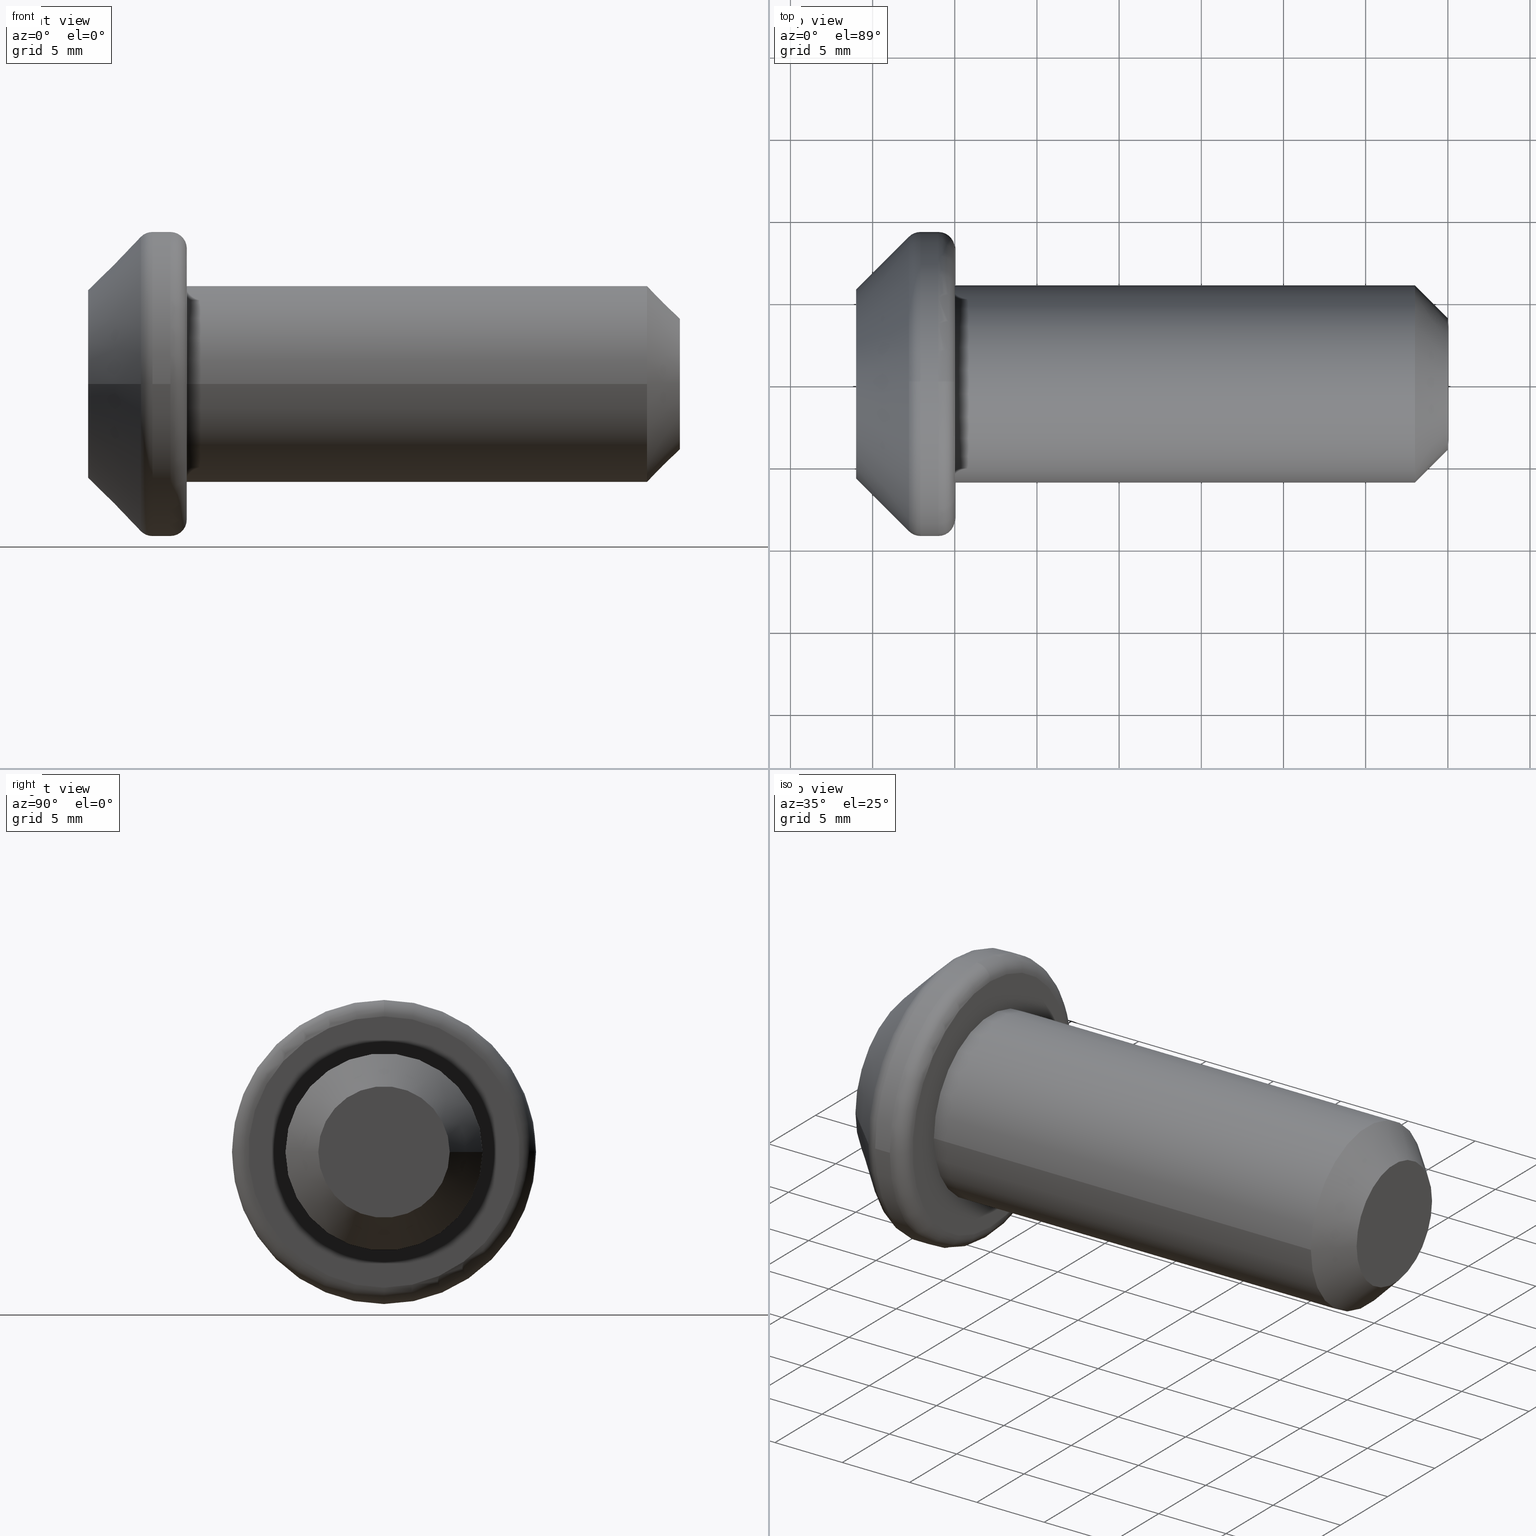
[diagram: canonical four-view strip — front | top / right | iso, engineering-drawing reading convention]
A machine part, canonical four-view strip (front | top / right | iso — engineering-drawing reading convention). The complete STEP part file that produces these views, byte-faithful:
ISO-10303-21;
HEADER;
/* Generated by software containing ST-Developer
 * from STEP Tools, Inc. (www.steptools.com) 
 */

FILE_DESCRIPTION(
/* description */ ('VITE TORX M12X30 PER CAVA 10'),
/* implementation_level */ '2;1');

FILE_NAME(
/* name */ 
'C:\\Users\\tecnico7\\Desktop\\tavole temporanee\\CVITX0000001.stp',
/* time_stamp */ '2022-11-16T16:27:43+01:00',
/* author */ ('tecnico7'),
/* organization */ (''),
/* preprocessor_version */ 'ST-DEVELOPER v18.1',
/* originating_system */ 'Autodesk Inventor 2022',
/* authorisation */ '');

FILE_SCHEMA (('AUTOMOTIVE_DESIGN { 1 0 10303 214 3 1 1 }'));
ENDSEC;

DATA;
#10=MECHANICAL_DESIGN_GEOMETRIC_PRESENTATION_REPRESENTATION('',(#13),#1237);
#11=SHAPE_REPRESENTATION_RELATIONSHIP('SRR','None',#1244,#12);
#12=ADVANCED_BREP_SHAPE_REPRESENTATION('',(#14),#1236);
#13=STYLED_ITEM('',(#1253),#14);
#14=MANIFOLD_SOLID_BREP('Solido1',#634);
#15=FACE_BOUND('',#117,.T.);
#16=FACE_BOUND('',#121,.T.);
#17=TOROIDAL_SURFACE('',#703,8.25,1.);
#18=TOROIDAL_SURFACE('',#712,8.25,1.);
#19=CONICAL_SURFACE('',#666,2.5,1.0471975511966);
#20=CONICAL_SURFACE('',#696,5.00000000000001,0.785398163397447);
#21=CONICAL_SURFACE('',#716,7.5,0.785398163397449);
#22=(
BOUNDED_CURVE()
B_SPLINE_CURVE(2,(#917,#918,#919),.UNSPECIFIED.,.F.,.F.)
B_SPLINE_CURVE_WITH_KNOTS((3,3),(0.087400700736972,0.252362849734542),
 .UNSPECIFIED.)
CURVE()
GEOMETRIC_REPRESENTATION_ITEM()
RATIONAL_B_SPLINE_CURVE((1.14373793006744,1.26421149258451,1.32740695193226))
REPRESENTATION_ITEM('')
);
#23=(
BOUNDED_CURVE()
B_SPLINE_CURVE(2,(#944,#945,#946),.UNSPECIFIED.,.F.,.F.)
B_SPLINE_CURVE_WITH_KNOTS((3,3),(0.616371369711005,0.781333518705879),
 .UNSPECIFIED.)
CURVE()
GEOMETRIC_REPRESENTATION_ITEM()
RATIONAL_B_SPLINE_CURVE((1.32740695193317,1.26421149258686,1.14373793007311))
REPRESENTATION_ITEM('')
);
#24=(
BOUNDED_CURVE()
B_SPLINE_CURVE(2,(#970,#971,#972),.UNSPECIFIED.,.F.,.F.)
B_SPLINE_CURVE_WITH_KNOTS((3,3),(0.087400700736972,0.252362849734542),
 .UNSPECIFIED.)
CURVE()
GEOMETRIC_REPRESENTATION_ITEM()
RATIONAL_B_SPLINE_CURVE((1.14373793006744,1.26421149258451,1.32740695193226))
REPRESENTATION_ITEM('')
);
#25=(
BOUNDED_CURVE()
B_SPLINE_CURVE(2,(#974,#975,#976),.UNSPECIFIED.,.F.,.F.)
B_SPLINE_CURVE_WITH_KNOTS((3,3),(0.616371369711005,0.781333518705878),
 .UNSPECIFIED.)
CURVE()
GEOMETRIC_REPRESENTATION_ITEM()
RATIONAL_B_SPLINE_CURVE((1.32740695193317,1.26421149258686,1.14373793007311))
REPRESENTATION_ITEM('')
);
#26=(
BOUNDED_CURVE()
B_SPLINE_CURVE(2,(#992,#993,#994),.UNSPECIFIED.,.F.,.F.)
B_SPLINE_CURVE_WITH_KNOTS((3,3),(0.616371369711004,0.781333518705878),
 .UNSPECIFIED.)
CURVE()
GEOMETRIC_REPRESENTATION_ITEM()
RATIONAL_B_SPLINE_CURVE((1.32740695193317,1.26421149258686,1.14373793007311))
REPRESENTATION_ITEM('')
);
#27=(
BOUNDED_CURVE()
B_SPLINE_CURVE(2,(#1011,#1012,#1013),.UNSPECIFIED.,.F.,.F.)
B_SPLINE_CURVE_WITH_KNOTS((3,3),(0.0874007007369721,0.252362849734542),
 .UNSPECIFIED.)
CURVE()
GEOMETRIC_REPRESENTATION_ITEM()
RATIONAL_B_SPLINE_CURVE((1.14373793006744,1.26421149258451,1.32740695193226))
REPRESENTATION_ITEM('')
);
#28=(
BOUNDED_CURVE()
B_SPLINE_CURVE(2,(#1026,#1027,#1028),.UNSPECIFIED.,.F.,.F.)
B_SPLINE_CURVE_WITH_KNOTS((3,3),(0.616371369711005,0.781333518705879),
 .UNSPECIFIED.)
CURVE()
GEOMETRIC_REPRESENTATION_ITEM()
RATIONAL_B_SPLINE_CURVE((1.32740695193317,1.26421149258686,1.14373793007311))
REPRESENTATION_ITEM('')
);
#29=(
BOUNDED_CURVE()
B_SPLINE_CURVE(2,(#1045,#1046,#1047),.UNSPECIFIED.,.F.,.F.)
B_SPLINE_CURVE_WITH_KNOTS((3,3),(0.087400700737026,0.252362849734542),
 .UNSPECIFIED.)
CURVE()
GEOMETRIC_REPRESENTATION_ITEM()
RATIONAL_B_SPLINE_CURVE((1.14373793006752,1.26421149258453,1.32740695193226))
REPRESENTATION_ITEM('')
);
#30=(
BOUNDED_CURVE()
B_SPLINE_CURVE(2,(#1060,#1061,#1062),.UNSPECIFIED.,.F.,.F.)
B_SPLINE_CURVE_WITH_KNOTS((3,3),(0.616371369711005,0.781333518705879),
 .UNSPECIFIED.)
CURVE()
GEOMETRIC_REPRESENTATION_ITEM()
RATIONAL_B_SPLINE_CURVE((1.32740695193317,1.26421149258686,1.14373793007311))
REPRESENTATION_ITEM('')
);
#31=(
BOUNDED_CURVE()
B_SPLINE_CURVE(2,(#1079,#1080,#1081),.UNSPECIFIED.,.F.,.F.)
B_SPLINE_CURVE_WITH_KNOTS((3,3),(0.0874007007370263,0.252362849734543),
 .UNSPECIFIED.)
CURVE()
GEOMETRIC_REPRESENTATION_ITEM()
RATIONAL_B_SPLINE_CURVE((1.14373793006752,1.26421149258453,1.32740695193226))
REPRESENTATION_ITEM('')
);
#32=(
BOUNDED_CURVE()
B_SPLINE_CURVE(2,(#1094,#1095,#1096),.UNSPECIFIED.,.F.,.F.)
B_SPLINE_CURVE_WITH_KNOTS((3,3),(0.616371369711005,0.781333518705879),
 .UNSPECIFIED.)
CURVE()
GEOMETRIC_REPRESENTATION_ITEM()
RATIONAL_B_SPLINE_CURVE((1.32740695193317,1.26421149258686,1.14373793007311))
REPRESENTATION_ITEM('')
);
#33=(
BOUNDED_CURVE()
B_SPLINE_CURVE(2,(#1113,#1114,#1115),.UNSPECIFIED.,.F.,.F.)
B_SPLINE_CURVE_WITH_KNOTS((3,3),(0.0874007007370261,0.252362849734542),
 .UNSPECIFIED.)
CURVE()
GEOMETRIC_REPRESENTATION_ITEM()
RATIONAL_B_SPLINE_CURVE((1.14373793006752,1.26421149258453,1.32740695193226))
REPRESENTATION_ITEM('')
);
#34=PLANE('',#659);
#35=PLANE('',#662);
#36=PLANE('',#665);
#37=PLANE('',#672);
#38=PLANE('',#675);
#39=PLANE('',#678);
#40=PLANE('',#684);
#41=PLANE('',#687);
#42=PLANE('',#690);
#43=PLANE('',#692);
#44=PLANE('',#693);
#45=PLANE('',#694);
#46=PLANE('',#695);
#47=PLANE('',#702);
#48=PLANE('',#711);
#49=PLANE('',#718);
#50=FACE_OUTER_BOUND('',#85,.T.);
#51=FACE_OUTER_BOUND('',#86,.T.);
#52=FACE_OUTER_BOUND('',#87,.T.);
#53=FACE_OUTER_BOUND('',#88,.T.);
#54=FACE_OUTER_BOUND('',#89,.T.);
#55=FACE_OUTER_BOUND('',#90,.T.);
#56=FACE_OUTER_BOUND('',#91,.T.);
#57=FACE_OUTER_BOUND('',#92,.T.);
#58=FACE_OUTER_BOUND('',#93,.T.);
#59=FACE_OUTER_BOUND('',#94,.T.);
#60=FACE_OUTER_BOUND('',#95,.T.);
#61=FACE_OUTER_BOUND('',#96,.T.);
#62=FACE_OUTER_BOUND('',#97,.T.);
#63=FACE_OUTER_BOUND('',#98,.T.);
#64=FACE_OUTER_BOUND('',#99,.T.);
#65=FACE_OUTER_BOUND('',#100,.T.);
#66=FACE_OUTER_BOUND('',#101,.T.);
#67=FACE_OUTER_BOUND('',#102,.T.);
#68=FACE_OUTER_BOUND('',#103,.T.);
#69=FACE_OUTER_BOUND('',#104,.T.);
#70=FACE_OUTER_BOUND('',#105,.T.);
#71=FACE_OUTER_BOUND('',#106,.T.);
#72=FACE_OUTER_BOUND('',#107,.T.);
#73=FACE_OUTER_BOUND('',#108,.T.);
#74=FACE_OUTER_BOUND('',#109,.T.);
#75=FACE_OUTER_BOUND('',#110,.T.);
#76=FACE_OUTER_BOUND('',#111,.T.);
#77=FACE_OUTER_BOUND('',#112,.T.);
#78=FACE_OUTER_BOUND('',#113,.T.);
#79=FACE_OUTER_BOUND('',#114,.T.);
#80=FACE_OUTER_BOUND('',#115,.T.);
#81=FACE_OUTER_BOUND('',#116,.T.);
#82=FACE_OUTER_BOUND('',#118,.T.);
#83=FACE_OUTER_BOUND('',#119,.T.);
#84=FACE_OUTER_BOUND('',#120,.T.);
#85=EDGE_LOOP('',(#399,#400,#401,#402,#403));
#86=EDGE_LOOP('',(#404,#405,#406,#407));
#87=EDGE_LOOP('',(#408,#409,#410,#411));
#88=EDGE_LOOP('',(#412,#413,#414,#415));
#89=EDGE_LOOP('',(#416,#417,#418,#419));
#90=EDGE_LOOP('',(#420,#421,#422,#423));
#91=EDGE_LOOP('',(#424,#425,#426,#427,#428,#429,#430,#431,#432,#433,#434,
#435,#436,#437,#438,#439,#440,#441,#442,#443,#444,#445,#446,#447,#448,#449,
#450,#451));
#92=EDGE_LOOP('',(#452,#453,#454,#455));
#93=EDGE_LOOP('',(#456,#457,#458,#459));
#94=EDGE_LOOP('',(#460,#461,#462,#463));
#95=EDGE_LOOP('',(#464,#465,#466,#467));
#96=EDGE_LOOP('',(#468,#469,#470,#471));
#97=EDGE_LOOP('',(#472,#473,#474,#475));
#98=EDGE_LOOP('',(#476,#477,#478,#479,#480,#481,#482,#483,#484,#485,#486,
#487,#488,#489,#490,#491,#492,#493,#494,#495,#496,#497,#498,#499));
#99=EDGE_LOOP('',(#500,#501,#502,#503));
#100=EDGE_LOOP('',(#504,#505,#506,#507));
#101=EDGE_LOOP('',(#508,#509,#510,#511));
#102=EDGE_LOOP('',(#512,#513,#514,#515));
#103=EDGE_LOOP('',(#516,#517,#518,#519));
#104=EDGE_LOOP('',(#520,#521,#522,#523));
#105=EDGE_LOOP('',(#524,#525,#526,#527));
#106=EDGE_LOOP('',(#528,#529,#530,#531));
#107=EDGE_LOOP('',(#532,#533,#534,#535));
#108=EDGE_LOOP('',(#536,#537,#538,#539));
#109=EDGE_LOOP('',(#540,#541,#542,#543));
#110=EDGE_LOOP('',(#544,#545,#546,#547));
#111=EDGE_LOOP('',(#548,#549,#550,#551,#552));
#112=EDGE_LOOP('',(#553,#554,#555,#556,#557));
#113=EDGE_LOOP('',(#558));
#114=EDGE_LOOP('',(#559,#560,#561,#562,#563));
#115=EDGE_LOOP('',(#564,#565,#566,#567,#568,#569));
#116=EDGE_LOOP('',(#570));
#117=EDGE_LOOP('',(#571));
#118=EDGE_LOOP('',(#572,#573,#574,#575,#576,#577));
#119=EDGE_LOOP('',(#578,#579,#580,#581,#582));
#120=EDGE_LOOP('',(#583));
#121=EDGE_LOOP('',(#584));
#122=B_SPLINE_CURVE_WITH_KNOTS('',3,(#894,#895,#896,#897,#898,#899,#900,
#901),.UNSPECIFIED.,.F.,.F.,(4,2,2,4),(0.191737933276097,0.194402950141022,
0.215604419465925,0.236805888790828),.UNSPECIFIED.);
#123=B_SPLINE_CURVE_WITH_KNOTS('',3,(#903,#904,#905,#906,#907,#908,#909,
#910),.UNSPECIFIED.,.F.,.F.,(4,2,2,4),(0.236805888790828,0.258007358115731,
0.279208827440634,0.281873844305546),.UNSPECIFIED.);
#124=B_SPLINE_CURVE_WITH_KNOTS('',3,(#927,#928,#929,#930,#931,#932,#933,
#934,#935,#936,#937,#938,#939,#940),.UNSPECIFIED.,.F.,.F.,(4,2,2,2,2,2,
4),(0.191737933276098,0.194402950141022,0.215604419465925,0.236805888790828,
0.258007358115731,0.279208827440634,0.281873844305546),.UNSPECIFIED.);
#125=B_SPLINE_CURVE_WITH_KNOTS('',3,(#953,#954,#955,#956,#957,#958,#959,
#960,#961,#962),.UNSPECIFIED.,.F.,.F.,(4,2,2,2,4),(0.233053358602578,0.234521765102937,
0.251431132707615,0.268340500312292,0.269808906812607),.UNSPECIFIED.);
#126=B_SPLINE_CURVE_WITH_KNOTS('',3,(#981,#982,#983,#984,#985,#986,#987,
#988,#989,#990),.UNSPECIFIED.,.F.,.F.,(4,2,2,2,4),(0.233053358602578,0.234521765102937,
0.251431132707615,0.268340500312292,0.269808906812607),.UNSPECIFIED.);
#127=B_SPLINE_CURVE_WITH_KNOTS('',3,(#996,#997,#998,#999,#1000,#1001,#1002,
#1003,#1004,#1005,#1006,#1007,#1008,#1009),.UNSPECIFIED.,.F.,.F.,(4,2,2,
2,2,2,4),(0.191737933276098,0.194402950141022,0.215604419465925,0.236805888790828,
0.258007358115731,0.279208827440634,0.281873844305546),.UNSPECIFIED.);
#128=B_SPLINE_CURVE_WITH_KNOTS('',3,(#1015,#1016,#1017,#1018,#1019,#1020,
#1021,#1022,#1023,#1024),.UNSPECIFIED.,.F.,.F.,(4,2,2,2,4),(0.233053358602578,
0.234521765102937,0.251431132707615,0.268340500312292,0.269808906812607),
 .UNSPECIFIED.);
#129=B_SPLINE_CURVE_WITH_KNOTS('',3,(#1030,#1031,#1032,#1033,#1034,#1035,
#1036,#1037,#1038,#1039,#1040,#1041,#1042,#1043),.UNSPECIFIED.,.F.,.F.,
(4,2,2,2,2,2,4),(0.191737933276098,0.194402950141022,0.215604419465925,
0.236805888790828,0.258007358115731,0.279208827440634,0.281873844305546),
 .UNSPECIFIED.);
#130=B_SPLINE_CURVE_WITH_KNOTS('',3,(#1049,#1050,#1051,#1052,#1053,#1054,
#1055,#1056,#1057,#1058),.UNSPECIFIED.,.F.,.F.,(4,2,2,2,4),(0.233053358602578,
0.234521765102937,0.251431132707615,0.268340500312292,0.269808906812607),
 .UNSPECIFIED.);
#131=B_SPLINE_CURVE_WITH_KNOTS('',3,(#1064,#1065,#1066,#1067,#1068,#1069,
#1070,#1071,#1072,#1073,#1074,#1075,#1076,#1077),.UNSPECIFIED.,.F.,.F.,
(4,2,2,2,2,2,4),(0.191737933276098,0.194402950141022,0.215604419465925,
0.236805888790828,0.258007358115731,0.279208827440634,0.281873844305546),
 .UNSPECIFIED.);
#132=B_SPLINE_CURVE_WITH_KNOTS('',3,(#1083,#1084,#1085,#1086,#1087,#1088,
#1089,#1090,#1091,#1092),.UNSPECIFIED.,.F.,.F.,(4,2,2,2,4),(0.233053358602578,
0.234521765102937,0.251431132707615,0.268340500312292,0.269808906812607),
 .UNSPECIFIED.);
#133=B_SPLINE_CURVE_WITH_KNOTS('',3,(#1098,#1099,#1100,#1101,#1102,#1103,
#1104,#1105,#1106,#1107,#1108,#1109,#1110,#1111),.UNSPECIFIED.,.F.,.F.,
(4,2,2,2,2,2,4),(0.191737933276098,0.194402950141022,0.215604419465925,
0.236805888790828,0.258007358115731,0.279208827440634,0.281873844305546),
 .UNSPECIFIED.);
#134=B_SPLINE_CURVE_WITH_KNOTS('',3,(#1116,#1117,#1118,#1119,#1120,#1121,
#1122,#1123,#1124,#1125),.UNSPECIFIED.,.F.,.F.,(4,2,2,2,4),(0.233053358602578,
0.234521765102937,0.251431132707615,0.268340500312292,0.269808906812607),
 .UNSPECIFIED.);
#135=LINE('',#892,#176);
#136=LINE('',#911,#177);
#137=LINE('',#914,#178);
#138=LINE('',#916,#179);
#139=LINE('',#925,#180);
#140=LINE('',#941,#181);
#141=LINE('',#948,#182);
#142=LINE('',#949,#183);
#143=LINE('',#964,#184);
#144=LINE('',#967,#185);
#145=LINE('',#969,#186);
#146=LINE('',#978,#187);
#147=LINE('',#1128,#188);
#148=LINE('',#1134,#189);
#149=LINE('',#1135,#190);
#150=LINE('',#1137,#191);
#151=LINE('',#1140,#192);
#152=LINE('',#1143,#193);
#153=LINE('',#1146,#194);
#154=LINE('',#1147,#195);
#155=LINE('',#1151,#196);
#156=LINE('',#1153,#197);
#157=LINE('',#1154,#198);
#158=LINE('',#1156,#199);
#159=LINE('',#1160,#200);
#160=LINE('',#1164,#201);
#161=LINE('',#1168,#202);
#162=LINE('',#1172,#203);
#163=LINE('',#1175,#204);
#164=LINE('',#1177,#205);
#165=LINE('',#1179,#206);
#166=LINE('',#1180,#207);
#167=LINE('',#1182,#208);
#168=LINE('',#1185,#209);
#169=LINE('',#1186,#210);
#170=LINE('',#1188,#211);
#171=LINE('',#1190,#212);
#172=LINE('',#1199,#213);
#173=LINE('',#1205,#214);
#174=LINE('',#1218,#215);
#175=LINE('',#1231,#216);
#176=VECTOR('',#725,10.);
#177=VECTOR('',#726,10.);
#178=VECTOR('',#729,10.);
#179=VECTOR('',#730,10.);
#180=VECTOR('',#735,10.);
#181=VECTOR('',#736,10.);
#182=VECTOR('',#739,10.);
#183=VECTOR('',#740,10.);
#184=VECTOR('',#743,10.);
#185=VECTOR('',#746,10.);
#186=VECTOR('',#749,10.);
#187=VECTOR('',#752,2.5);
#188=VECTOR('',#757,10.);
#189=VECTOR('',#764,10.);
#190=VECTOR('',#765,10.);
#191=VECTOR('',#768,10.);
#192=VECTOR('',#771,10.);
#193=VECTOR('',#774,10.);
#194=VECTOR('',#777,10.);
#195=VECTOR('',#778,10.);
#196=VECTOR('',#783,10.);
#197=VECTOR('',#786,10.);
#198=VECTOR('',#787,10.);
#199=VECTOR('',#788,10.);
#200=VECTOR('',#791,10.);
#201=VECTOR('',#794,10.);
#202=VECTOR('',#797,10.);
#203=VECTOR('',#800,10.);
#204=VECTOR('',#805,10.);
#205=VECTOR('',#808,10.);
#206=VECTOR('',#811,10.);
#207=VECTOR('',#812,10.);
#208=VECTOR('',#815,10.);
#209=VECTOR('',#820,10.);
#210=VECTOR('',#821,10.);
#211=VECTOR('',#824,10.);
#212=VECTOR('',#827,10.);
#213=VECTOR('',#840,5.00000000000001);
#214=VECTOR('',#847,6.);
#215=VECTOR('',#864,9.25);
#216=VECTOR('',#881,7.5);
#217=CIRCLE('',#658,0.5);
#218=CIRCLE('',#661,0.5);
#219=CIRCLE('',#664,0.5);
#220=CIRCLE('',#667,5.);
#221=CIRCLE('',#669,0.5);
#222=CIRCLE('',#671,0.5);
#223=CIRCLE('',#674,0.5);
#224=CIRCLE('',#677,0.5);
#225=CIRCLE('',#679,0.5);
#226=CIRCLE('',#680,0.5);
#227=CIRCLE('',#681,0.5);
#228=CIRCLE('',#682,0.5);
#229=CIRCLE('',#683,0.5);
#230=CIRCLE('',#697,4.00000000000001);
#231=CIRCLE('',#698,6.);
#232=CIRCLE('',#699,6.);
#233=CIRCLE('',#701,6.);
#234=CIRCLE('',#704,8.25);
#235=CIRCLE('',#705,1.);
#236=CIRCLE('',#706,9.25);
#237=CIRCLE('',#707,9.25);
#238=CIRCLE('',#709,9.25);
#239=CIRCLE('',#710,9.25);
#240=CIRCLE('',#713,1.);
#241=CIRCLE('',#714,8.95710678118655);
#242=CIRCLE('',#715,8.95710678118655);
#243=CIRCLE('',#717,5.75);
#244=VERTEX_POINT('',#888);
#245=VERTEX_POINT('',#889);
#246=VERTEX_POINT('',#891);
#247=VERTEX_POINT('',#893);
#248=VERTEX_POINT('',#902);
#249=VERTEX_POINT('',#913);
#250=VERTEX_POINT('',#915);
#251=VERTEX_POINT('',#921);
#252=VERTEX_POINT('',#922);
#253=VERTEX_POINT('',#924);
#254=VERTEX_POINT('',#926);
#255=VERTEX_POINT('',#943);
#256=VERTEX_POINT('',#947);
#257=VERTEX_POINT('',#951);
#258=VERTEX_POINT('',#952);
#259=VERTEX_POINT('',#963);
#260=VERTEX_POINT('',#965);
#261=VERTEX_POINT('',#977);
#262=VERTEX_POINT('',#980);
#263=VERTEX_POINT('',#991);
#264=VERTEX_POINT('',#995);
#265=VERTEX_POINT('',#1010);
#266=VERTEX_POINT('',#1014);
#267=VERTEX_POINT('',#1025);
#268=VERTEX_POINT('',#1029);
#269=VERTEX_POINT('',#1044);
#270=VERTEX_POINT('',#1048);
#271=VERTEX_POINT('',#1059);
#272=VERTEX_POINT('',#1063);
#273=VERTEX_POINT('',#1078);
#274=VERTEX_POINT('',#1082);
#275=VERTEX_POINT('',#1093);
#276=VERTEX_POINT('',#1097);
#277=VERTEX_POINT('',#1112);
#278=VERTEX_POINT('',#1127);
#279=VERTEX_POINT('',#1131);
#280=VERTEX_POINT('',#1132);
#281=VERTEX_POINT('',#1139);
#282=VERTEX_POINT('',#1141);
#283=VERTEX_POINT('',#1145);
#284=VERTEX_POINT('',#1149);
#285=VERTEX_POINT('',#1155);
#286=VERTEX_POINT('',#1157);
#287=VERTEX_POINT('',#1159);
#288=VERTEX_POINT('',#1161);
#289=VERTEX_POINT('',#1163);
#290=VERTEX_POINT('',#1165);
#291=VERTEX_POINT('',#1167);
#292=VERTEX_POINT('',#1169);
#293=VERTEX_POINT('',#1171);
#294=VERTEX_POINT('',#1196);
#295=VERTEX_POINT('',#1198);
#296=VERTEX_POINT('',#1200);
#297=VERTEX_POINT('',#1204);
#298=VERTEX_POINT('',#1209);
#299=VERTEX_POINT('',#1211);
#300=VERTEX_POINT('',#1213);
#301=VERTEX_POINT('',#1217);
#302=VERTEX_POINT('',#1219);
#303=VERTEX_POINT('',#1224);
#304=VERTEX_POINT('',#1226);
#305=VERTEX_POINT('',#1230);
#306=EDGE_CURVE('',#244,#245,#217,.T.);
#307=EDGE_CURVE('',#244,#246,#135,.T.);
#308=EDGE_CURVE('',#246,#247,#122,.T.);
#309=EDGE_CURVE('',#247,#248,#123,.T.);
#310=EDGE_CURVE('',#248,#245,#136,.T.);
#311=EDGE_CURVE('',#244,#249,#137,.T.);
#312=EDGE_CURVE('',#250,#249,#138,.T.);
#313=EDGE_CURVE('',#246,#250,#22,.T.);
#314=EDGE_CURVE('',#251,#252,#218,.T.);
#315=EDGE_CURVE('',#251,#253,#139,.T.);
#316=EDGE_CURVE('',#253,#254,#124,.T.);
#317=EDGE_CURVE('',#254,#252,#140,.T.);
#318=EDGE_CURVE('',#255,#254,#23,.T.);
#319=EDGE_CURVE('',#256,#255,#141,.T.);
#320=EDGE_CURVE('',#256,#252,#142,.T.);
#321=EDGE_CURVE('',#257,#258,#125,.T.);
#322=EDGE_CURVE('',#258,#259,#143,.T.);
#323=EDGE_CURVE('',#259,#260,#219,.F.);
#324=EDGE_CURVE('',#260,#257,#144,.T.);
#325=EDGE_CURVE('',#251,#259,#145,.T.);
#326=EDGE_CURVE('',#253,#258,#24,.T.);
#327=EDGE_CURVE('',#257,#248,#25,.T.);
#328=EDGE_CURVE('',#247,#261,#146,.T.);
#329=EDGE_CURVE('',#261,#261,#220,.T.);
#330=EDGE_CURVE('',#262,#250,#126,.T.);
#331=EDGE_CURVE('',#262,#263,#26,.T.);
#332=EDGE_CURVE('',#264,#263,#127,.T.);
#333=EDGE_CURVE('',#264,#265,#27,.T.);
#334=EDGE_CURVE('',#266,#265,#128,.T.);
#335=EDGE_CURVE('',#266,#267,#28,.T.);
#336=EDGE_CURVE('',#268,#267,#129,.T.);
#337=EDGE_CURVE('',#268,#269,#29,.T.);
#338=EDGE_CURVE('',#270,#269,#130,.T.);
#339=EDGE_CURVE('',#270,#271,#30,.T.);
#340=EDGE_CURVE('',#272,#271,#131,.T.);
#341=EDGE_CURVE('',#272,#273,#31,.T.);
#342=EDGE_CURVE('',#274,#273,#132,.T.);
#343=EDGE_CURVE('',#274,#275,#32,.T.);
#344=EDGE_CURVE('',#276,#275,#133,.T.);
#345=EDGE_CURVE('',#276,#277,#33,.T.);
#346=EDGE_CURVE('',#255,#277,#134,.T.);
#347=EDGE_CURVE('',#277,#278,#147,.T.);
#348=EDGE_CURVE('',#278,#256,#221,.F.);
#349=EDGE_CURVE('',#279,#280,#222,.T.);
#350=EDGE_CURVE('',#279,#276,#148,.T.);
#351=EDGE_CURVE('',#275,#280,#149,.T.);
#352=EDGE_CURVE('',#279,#278,#150,.T.);
#353=EDGE_CURVE('',#273,#281,#151,.T.);
#354=EDGE_CURVE('',#281,#282,#223,.F.);
#355=EDGE_CURVE('',#282,#274,#152,.T.);
#356=EDGE_CURVE('',#283,#272,#153,.T.);
#357=EDGE_CURVE('',#283,#281,#154,.T.);
#358=EDGE_CURVE('',#283,#284,#224,.T.);
#359=EDGE_CURVE('',#271,#284,#155,.T.);
#360=EDGE_CURVE('',#260,#245,#156,.T.);
#361=EDGE_CURVE('',#282,#280,#157,.T.);
#362=EDGE_CURVE('',#285,#284,#158,.T.);
#363=EDGE_CURVE('',#286,#285,#225,.F.);
#364=EDGE_CURVE('',#287,#286,#159,.T.);
#365=EDGE_CURVE('',#287,#288,#226,.T.);
#366=EDGE_CURVE('',#289,#288,#160,.T.);
#367=EDGE_CURVE('',#290,#289,#227,.F.);
#368=EDGE_CURVE('',#291,#290,#161,.T.);
#369=EDGE_CURVE('',#291,#292,#228,.T.);
#370=EDGE_CURVE('',#293,#292,#162,.T.);
#371=EDGE_CURVE('',#249,#293,#229,.F.);
#372=EDGE_CURVE('',#285,#270,#163,.T.);
#373=EDGE_CURVE('',#269,#286,#164,.T.);
#374=EDGE_CURVE('',#291,#264,#165,.T.);
#375=EDGE_CURVE('',#263,#292,#166,.T.);
#376=EDGE_CURVE('',#293,#262,#167,.T.);
#377=EDGE_CURVE('',#287,#268,#168,.T.);
#378=EDGE_CURVE('',#267,#288,#169,.T.);
#379=EDGE_CURVE('',#289,#266,#170,.T.);
#380=EDGE_CURVE('',#265,#290,#171,.T.);
#381=EDGE_CURVE('',#294,#294,#230,.T.);
#382=EDGE_CURVE('',#294,#295,#172,.T.);
#383=EDGE_CURVE('',#295,#296,#231,.T.);
#384=EDGE_CURVE('',#296,#295,#232,.T.);
#385=EDGE_CURVE('',#296,#297,#173,.T.);
#386=EDGE_CURVE('',#297,#297,#233,.T.);
#387=EDGE_CURVE('',#298,#298,#234,.T.);
#388=EDGE_CURVE('',#298,#299,#235,.T.);
#389=EDGE_CURVE('',#299,#300,#236,.T.);
#390=EDGE_CURVE('',#300,#299,#237,.T.);
#391=EDGE_CURVE('',#300,#301,#174,.T.);
#392=EDGE_CURVE('',#302,#301,#238,.T.);
#393=EDGE_CURVE('',#301,#302,#239,.T.);
#394=EDGE_CURVE('',#302,#303,#240,.T.);
#395=EDGE_CURVE('',#303,#304,#241,.T.);
#396=EDGE_CURVE('',#304,#303,#242,.T.);
#397=EDGE_CURVE('',#304,#305,#175,.T.);
#398=EDGE_CURVE('',#305,#305,#243,.T.);
#399=ORIENTED_EDGE('',*,*,#306,.F.);
#400=ORIENTED_EDGE('',*,*,#307,.T.);
#401=ORIENTED_EDGE('',*,*,#308,.T.);
#402=ORIENTED_EDGE('',*,*,#309,.T.);
#403=ORIENTED_EDGE('',*,*,#310,.T.);
#404=ORIENTED_EDGE('',*,*,#307,.F.);
#405=ORIENTED_EDGE('',*,*,#311,.T.);
#406=ORIENTED_EDGE('',*,*,#312,.F.);
#407=ORIENTED_EDGE('',*,*,#313,.F.);
#408=ORIENTED_EDGE('',*,*,#314,.F.);
#409=ORIENTED_EDGE('',*,*,#315,.T.);
#410=ORIENTED_EDGE('',*,*,#316,.T.);
#411=ORIENTED_EDGE('',*,*,#317,.T.);
#412=ORIENTED_EDGE('',*,*,#317,.F.);
#413=ORIENTED_EDGE('',*,*,#318,.F.);
#414=ORIENTED_EDGE('',*,*,#319,.F.);
#415=ORIENTED_EDGE('',*,*,#320,.T.);
#416=ORIENTED_EDGE('',*,*,#321,.T.);
#417=ORIENTED_EDGE('',*,*,#322,.T.);
#418=ORIENTED_EDGE('',*,*,#323,.T.);
#419=ORIENTED_EDGE('',*,*,#324,.T.);
#420=ORIENTED_EDGE('',*,*,#315,.F.);
#421=ORIENTED_EDGE('',*,*,#325,.T.);
#422=ORIENTED_EDGE('',*,*,#322,.F.);
#423=ORIENTED_EDGE('',*,*,#326,.F.);
#424=ORIENTED_EDGE('',*,*,#321,.F.);
#425=ORIENTED_EDGE('',*,*,#327,.T.);
#426=ORIENTED_EDGE('',*,*,#309,.F.);
#427=ORIENTED_EDGE('',*,*,#328,.T.);
#428=ORIENTED_EDGE('',*,*,#329,.F.);
#429=ORIENTED_EDGE('',*,*,#328,.F.);
#430=ORIENTED_EDGE('',*,*,#308,.F.);
#431=ORIENTED_EDGE('',*,*,#313,.T.);
#432=ORIENTED_EDGE('',*,*,#330,.F.);
#433=ORIENTED_EDGE('',*,*,#331,.T.);
#434=ORIENTED_EDGE('',*,*,#332,.F.);
#435=ORIENTED_EDGE('',*,*,#333,.T.);
#436=ORIENTED_EDGE('',*,*,#334,.F.);
#437=ORIENTED_EDGE('',*,*,#335,.T.);
#438=ORIENTED_EDGE('',*,*,#336,.F.);
#439=ORIENTED_EDGE('',*,*,#337,.T.);
#440=ORIENTED_EDGE('',*,*,#338,.F.);
#441=ORIENTED_EDGE('',*,*,#339,.T.);
#442=ORIENTED_EDGE('',*,*,#340,.F.);
#443=ORIENTED_EDGE('',*,*,#341,.T.);
#444=ORIENTED_EDGE('',*,*,#342,.F.);
#445=ORIENTED_EDGE('',*,*,#343,.T.);
#446=ORIENTED_EDGE('',*,*,#344,.F.);
#447=ORIENTED_EDGE('',*,*,#345,.T.);
#448=ORIENTED_EDGE('',*,*,#346,.F.);
#449=ORIENTED_EDGE('',*,*,#318,.T.);
#450=ORIENTED_EDGE('',*,*,#316,.F.);
#451=ORIENTED_EDGE('',*,*,#326,.T.);
#452=ORIENTED_EDGE('',*,*,#346,.T.);
#453=ORIENTED_EDGE('',*,*,#347,.T.);
#454=ORIENTED_EDGE('',*,*,#348,.T.);
#455=ORIENTED_EDGE('',*,*,#319,.T.);
#456=ORIENTED_EDGE('',*,*,#349,.F.);
#457=ORIENTED_EDGE('',*,*,#350,.T.);
#458=ORIENTED_EDGE('',*,*,#344,.T.);
#459=ORIENTED_EDGE('',*,*,#351,.T.);
#460=ORIENTED_EDGE('',*,*,#347,.F.);
#461=ORIENTED_EDGE('',*,*,#345,.F.);
#462=ORIENTED_EDGE('',*,*,#350,.F.);
#463=ORIENTED_EDGE('',*,*,#352,.T.);
#464=ORIENTED_EDGE('',*,*,#342,.T.);
#465=ORIENTED_EDGE('',*,*,#353,.T.);
#466=ORIENTED_EDGE('',*,*,#354,.T.);
#467=ORIENTED_EDGE('',*,*,#355,.T.);
#468=ORIENTED_EDGE('',*,*,#353,.F.);
#469=ORIENTED_EDGE('',*,*,#341,.F.);
#470=ORIENTED_EDGE('',*,*,#356,.F.);
#471=ORIENTED_EDGE('',*,*,#357,.T.);
#472=ORIENTED_EDGE('',*,*,#358,.F.);
#473=ORIENTED_EDGE('',*,*,#356,.T.);
#474=ORIENTED_EDGE('',*,*,#340,.T.);
#475=ORIENTED_EDGE('',*,*,#359,.T.);
#476=ORIENTED_EDGE('',*,*,#306,.T.);
#477=ORIENTED_EDGE('',*,*,#360,.F.);
#478=ORIENTED_EDGE('',*,*,#323,.F.);
#479=ORIENTED_EDGE('',*,*,#325,.F.);
#480=ORIENTED_EDGE('',*,*,#314,.T.);
#481=ORIENTED_EDGE('',*,*,#320,.F.);
#482=ORIENTED_EDGE('',*,*,#348,.F.);
#483=ORIENTED_EDGE('',*,*,#352,.F.);
#484=ORIENTED_EDGE('',*,*,#349,.T.);
#485=ORIENTED_EDGE('',*,*,#361,.F.);
#486=ORIENTED_EDGE('',*,*,#354,.F.);
#487=ORIENTED_EDGE('',*,*,#357,.F.);
#488=ORIENTED_EDGE('',*,*,#358,.T.);
#489=ORIENTED_EDGE('',*,*,#362,.F.);
#490=ORIENTED_EDGE('',*,*,#363,.F.);
#491=ORIENTED_EDGE('',*,*,#364,.F.);
#492=ORIENTED_EDGE('',*,*,#365,.T.);
#493=ORIENTED_EDGE('',*,*,#366,.F.);
#494=ORIENTED_EDGE('',*,*,#367,.F.);
#495=ORIENTED_EDGE('',*,*,#368,.F.);
#496=ORIENTED_EDGE('',*,*,#369,.T.);
#497=ORIENTED_EDGE('',*,*,#370,.F.);
#498=ORIENTED_EDGE('',*,*,#371,.F.);
#499=ORIENTED_EDGE('',*,*,#311,.F.);
#500=ORIENTED_EDGE('',*,*,#359,.F.);
#501=ORIENTED_EDGE('',*,*,#339,.F.);
#502=ORIENTED_EDGE('',*,*,#372,.F.);
#503=ORIENTED_EDGE('',*,*,#362,.T.);
#504=ORIENTED_EDGE('',*,*,#338,.T.);
#505=ORIENTED_EDGE('',*,*,#373,.T.);
#506=ORIENTED_EDGE('',*,*,#363,.T.);
#507=ORIENTED_EDGE('',*,*,#372,.T.);
#508=ORIENTED_EDGE('',*,*,#369,.F.);
#509=ORIENTED_EDGE('',*,*,#374,.T.);
#510=ORIENTED_EDGE('',*,*,#332,.T.);
#511=ORIENTED_EDGE('',*,*,#375,.T.);
#512=ORIENTED_EDGE('',*,*,#375,.F.);
#513=ORIENTED_EDGE('',*,*,#331,.F.);
#514=ORIENTED_EDGE('',*,*,#376,.F.);
#515=ORIENTED_EDGE('',*,*,#370,.T.);
#516=ORIENTED_EDGE('',*,*,#330,.T.);
#517=ORIENTED_EDGE('',*,*,#312,.T.);
#518=ORIENTED_EDGE('',*,*,#371,.T.);
#519=ORIENTED_EDGE('',*,*,#376,.T.);
#520=ORIENTED_EDGE('',*,*,#365,.F.);
#521=ORIENTED_EDGE('',*,*,#377,.T.);
#522=ORIENTED_EDGE('',*,*,#336,.T.);
#523=ORIENTED_EDGE('',*,*,#378,.T.);
#524=ORIENTED_EDGE('',*,*,#378,.F.);
#525=ORIENTED_EDGE('',*,*,#335,.F.);
#526=ORIENTED_EDGE('',*,*,#379,.F.);
#527=ORIENTED_EDGE('',*,*,#366,.T.);
#528=ORIENTED_EDGE('',*,*,#334,.T.);
#529=ORIENTED_EDGE('',*,*,#380,.T.);
#530=ORIENTED_EDGE('',*,*,#367,.T.);
#531=ORIENTED_EDGE('',*,*,#379,.T.);
#532=ORIENTED_EDGE('',*,*,#310,.F.);
#533=ORIENTED_EDGE('',*,*,#327,.F.);
#534=ORIENTED_EDGE('',*,*,#324,.F.);
#535=ORIENTED_EDGE('',*,*,#360,.T.);
#536=ORIENTED_EDGE('',*,*,#374,.F.);
#537=ORIENTED_EDGE('',*,*,#368,.T.);
#538=ORIENTED_EDGE('',*,*,#380,.F.);
#539=ORIENTED_EDGE('',*,*,#333,.F.);
#540=ORIENTED_EDGE('',*,*,#351,.F.);
#541=ORIENTED_EDGE('',*,*,#343,.F.);
#542=ORIENTED_EDGE('',*,*,#355,.F.);
#543=ORIENTED_EDGE('',*,*,#361,.T.);
#544=ORIENTED_EDGE('',*,*,#373,.F.);
#545=ORIENTED_EDGE('',*,*,#337,.F.);
#546=ORIENTED_EDGE('',*,*,#377,.F.);
#547=ORIENTED_EDGE('',*,*,#364,.T.);
#548=ORIENTED_EDGE('',*,*,#381,.T.);
#549=ORIENTED_EDGE('',*,*,#382,.T.);
#550=ORIENTED_EDGE('',*,*,#383,.T.);
#551=ORIENTED_EDGE('',*,*,#384,.T.);
#552=ORIENTED_EDGE('',*,*,#382,.F.);
#553=ORIENTED_EDGE('',*,*,#383,.F.);
#554=ORIENTED_EDGE('',*,*,#384,.F.);
#555=ORIENTED_EDGE('',*,*,#385,.T.);
#556=ORIENTED_EDGE('',*,*,#386,.T.);
#557=ORIENTED_EDGE('',*,*,#385,.F.);
#558=ORIENTED_EDGE('',*,*,#381,.F.);
#559=ORIENTED_EDGE('',*,*,#387,.T.);
#560=ORIENTED_EDGE('',*,*,#388,.T.);
#561=ORIENTED_EDGE('',*,*,#389,.T.);
#562=ORIENTED_EDGE('',*,*,#390,.T.);
#563=ORIENTED_EDGE('',*,*,#388,.F.);
#564=ORIENTED_EDGE('',*,*,#390,.F.);
#565=ORIENTED_EDGE('',*,*,#391,.T.);
#566=ORIENTED_EDGE('',*,*,#392,.F.);
#567=ORIENTED_EDGE('',*,*,#393,.F.);
#568=ORIENTED_EDGE('',*,*,#391,.F.);
#569=ORIENTED_EDGE('',*,*,#389,.F.);
#570=ORIENTED_EDGE('',*,*,#387,.F.);
#571=ORIENTED_EDGE('',*,*,#386,.F.);
#572=ORIENTED_EDGE('',*,*,#392,.T.);
#573=ORIENTED_EDGE('',*,*,#393,.T.);
#574=ORIENTED_EDGE('',*,*,#394,.T.);
#575=ORIENTED_EDGE('',*,*,#395,.T.);
#576=ORIENTED_EDGE('',*,*,#396,.T.);
#577=ORIENTED_EDGE('',*,*,#394,.F.);
#578=ORIENTED_EDGE('',*,*,#396,.F.);
#579=ORIENTED_EDGE('',*,*,#397,.T.);
#580=ORIENTED_EDGE('',*,*,#398,.T.);
#581=ORIENTED_EDGE('',*,*,#397,.F.);
#582=ORIENTED_EDGE('',*,*,#395,.F.);
#583=ORIENTED_EDGE('',*,*,#398,.F.);
#584=ORIENTED_EDGE('',*,*,#329,.T.);
#585=CYLINDRICAL_SURFACE('',#657,0.5);
#586=CYLINDRICAL_SURFACE('',#660,0.5);
#587=CYLINDRICAL_SURFACE('',#663,0.5);
#588=CYLINDRICAL_SURFACE('',#668,0.5);
#589=CYLINDRICAL_SURFACE('',#670,0.5);
#590=CYLINDRICAL_SURFACE('',#673,0.5);
#591=CYLINDRICAL_SURFACE('',#676,0.5);
#592=CYLINDRICAL_SURFACE('',#685,0.5);
#593=CYLINDRICAL_SURFACE('',#686,0.5);
#594=CYLINDRICAL_SURFACE('',#688,0.5);
#595=CYLINDRICAL_SURFACE('',#689,0.5);
#596=CYLINDRICAL_SURFACE('',#691,0.5);
#597=CYLINDRICAL_SURFACE('',#700,6.);
#598=CYLINDRICAL_SURFACE('',#708,9.25);
#599=ADVANCED_FACE('',(#50),#585,.F.);
#600=ADVANCED_FACE('',(#51),#34,.F.);
#601=ADVANCED_FACE('',(#52),#586,.F.);
#602=ADVANCED_FACE('',(#53),#35,.F.);
#603=ADVANCED_FACE('',(#54),#587,.T.);
#604=ADVANCED_FACE('',(#55),#36,.F.);
#605=ADVANCED_FACE('',(#56),#19,.F.);
#606=ADVANCED_FACE('',(#57),#588,.T.);
#607=ADVANCED_FACE('',(#58),#589,.F.);
#608=ADVANCED_FACE('',(#59),#37,.F.);
#609=ADVANCED_FACE('',(#60),#590,.T.);
#610=ADVANCED_FACE('',(#61),#38,.F.);
#611=ADVANCED_FACE('',(#62),#591,.F.);
#612=ADVANCED_FACE('',(#63),#39,.F.);
#613=ADVANCED_FACE('',(#64),#40,.F.);
#614=ADVANCED_FACE('',(#65),#592,.T.);
#615=ADVANCED_FACE('',(#66),#593,.F.);
#616=ADVANCED_FACE('',(#67),#41,.F.);
#617=ADVANCED_FACE('',(#68),#594,.T.);
#618=ADVANCED_FACE('',(#69),#595,.F.);
#619=ADVANCED_FACE('',(#70),#42,.F.);
#620=ADVANCED_FACE('',(#71),#596,.T.);
#621=ADVANCED_FACE('',(#72),#43,.F.);
#622=ADVANCED_FACE('',(#73),#44,.F.);
#623=ADVANCED_FACE('',(#74),#45,.F.);
#624=ADVANCED_FACE('',(#75),#46,.F.);
#625=ADVANCED_FACE('',(#76),#20,.T.);
#626=ADVANCED_FACE('',(#77),#597,.T.);
#627=ADVANCED_FACE('',(#78),#47,.T.);
#628=ADVANCED_FACE('',(#79),#17,.T.);
#629=ADVANCED_FACE('',(#80),#598,.T.);
#630=ADVANCED_FACE('',(#81,#15),#48,.T.);
#631=ADVANCED_FACE('',(#82),#18,.T.);
#632=ADVANCED_FACE('',(#83),#21,.T.);
#633=ADVANCED_FACE('',(#84,#16),#49,.T.);
#634=CLOSED_SHELL('',(#599,#600,#601,#602,#603,#604,#605,#606,#607,#608,
#609,#610,#611,#612,#613,#614,#615,#616,#617,#618,#619,#620,#621,#622,#623,
#624,#625,#626,#627,#628,#629,#630,#631,#632,#633));
#635=DERIVED_UNIT_ELEMENT(#638,1.);
#636=DERIVED_UNIT_ELEMENT(#1239,-3.);
#637=DIMENSIONAL_EXPONENTS(1.,0.,0.,0.,0.,0.,0.);
#638=(
CONVERSION_BASED_UNIT('gram',#640)
MASS_UNIT()
NAMED_UNIT(#637)
);
#639=(
MASS_UNIT()
NAMED_UNIT(*)
SI_UNIT(.KILO.,.GRAM.)
);
#640=MASS_MEASURE_WITH_UNIT(MASS_MEASURE(0.001),#639);
#641=DERIVED_UNIT((#635,#636));
#642=MEASURE_REPRESENTATION_ITEM('density measure',
POSITIVE_RATIO_MEASURE(7.87),#641);
#643=PROPERTY_DEFINITION_REPRESENTATION(#648,#645);
#644=PROPERTY_DEFINITION_REPRESENTATION(#649,#646);
#645=REPRESENTATION('material name',(#647),#1236);
#646=REPRESENTATION('density',(#642),#1236);
#647=DESCRIPTIVE_REPRESENTATION_ITEM('Acciaio 1 C40','Acciaio 1 C40');
#648=PROPERTY_DEFINITION('material property','material name',#1246);
#649=PROPERTY_DEFINITION('material property','density of part',#1246);
#650=DATE_TIME_ROLE('creation_date');
#651=APPLIED_DATE_AND_TIME_ASSIGNMENT(#652,#650,(#1246));
#652=DATE_AND_TIME(#653,#654);
#653=CALENDAR_DATE(2017,17,7);
#654=LOCAL_TIME(0,0,0.,#655);
#655=COORDINATED_UNIVERSAL_TIME_OFFSET(0,0,.BEHIND.);
#656=AXIS2_PLACEMENT_3D('placement',#886,#719,#720);
#657=AXIS2_PLACEMENT_3D('',#887,#721,#722);
#658=AXIS2_PLACEMENT_3D('',#890,#723,#724);
#659=AXIS2_PLACEMENT_3D('',#912,#727,#728);
#660=AXIS2_PLACEMENT_3D('',#920,#731,#732);
#661=AXIS2_PLACEMENT_3D('',#923,#733,#734);
#662=AXIS2_PLACEMENT_3D('',#942,#737,#738);
#663=AXIS2_PLACEMENT_3D('',#950,#741,#742);
#664=AXIS2_PLACEMENT_3D('',#966,#744,#745);
#665=AXIS2_PLACEMENT_3D('',#968,#747,#748);
#666=AXIS2_PLACEMENT_3D('',#973,#750,#751);
#667=AXIS2_PLACEMENT_3D('',#979,#753,#754);
#668=AXIS2_PLACEMENT_3D('',#1126,#755,#756);
#669=AXIS2_PLACEMENT_3D('',#1129,#758,#759);
#670=AXIS2_PLACEMENT_3D('',#1130,#760,#761);
#671=AXIS2_PLACEMENT_3D('',#1133,#762,#763);
#672=AXIS2_PLACEMENT_3D('',#1136,#766,#767);
#673=AXIS2_PLACEMENT_3D('',#1138,#769,#770);
#674=AXIS2_PLACEMENT_3D('',#1142,#772,#773);
#675=AXIS2_PLACEMENT_3D('',#1144,#775,#776);
#676=AXIS2_PLACEMENT_3D('',#1148,#779,#780);
#677=AXIS2_PLACEMENT_3D('',#1150,#781,#782);
#678=AXIS2_PLACEMENT_3D('',#1152,#784,#785);
#679=AXIS2_PLACEMENT_3D('',#1158,#789,#790);
#680=AXIS2_PLACEMENT_3D('',#1162,#792,#793);
#681=AXIS2_PLACEMENT_3D('',#1166,#795,#796);
#682=AXIS2_PLACEMENT_3D('',#1170,#798,#799);
#683=AXIS2_PLACEMENT_3D('',#1173,#801,#802);
#684=AXIS2_PLACEMENT_3D('',#1174,#803,#804);
#685=AXIS2_PLACEMENT_3D('',#1176,#806,#807);
#686=AXIS2_PLACEMENT_3D('',#1178,#809,#810);
#687=AXIS2_PLACEMENT_3D('',#1181,#813,#814);
#688=AXIS2_PLACEMENT_3D('',#1183,#816,#817);
#689=AXIS2_PLACEMENT_3D('',#1184,#818,#819);
#690=AXIS2_PLACEMENT_3D('',#1187,#822,#823);
#691=AXIS2_PLACEMENT_3D('',#1189,#825,#826);
#692=AXIS2_PLACEMENT_3D('',#1191,#828,#829);
#693=AXIS2_PLACEMENT_3D('',#1192,#830,#831);
#694=AXIS2_PLACEMENT_3D('',#1193,#832,#833);
#695=AXIS2_PLACEMENT_3D('',#1194,#834,#835);
#696=AXIS2_PLACEMENT_3D('',#1195,#836,#837);
#697=AXIS2_PLACEMENT_3D('',#1197,#838,#839);
#698=AXIS2_PLACEMENT_3D('',#1201,#841,#842);
#699=AXIS2_PLACEMENT_3D('',#1202,#843,#844);
#700=AXIS2_PLACEMENT_3D('',#1203,#845,#846);
#701=AXIS2_PLACEMENT_3D('',#1206,#848,#849);
#702=AXIS2_PLACEMENT_3D('',#1207,#850,#851);
#703=AXIS2_PLACEMENT_3D('',#1208,#852,#853);
#704=AXIS2_PLACEMENT_3D('',#1210,#854,#855);
#705=AXIS2_PLACEMENT_3D('',#1212,#856,#857);
#706=AXIS2_PLACEMENT_3D('',#1214,#858,#859);
#707=AXIS2_PLACEMENT_3D('',#1215,#860,#861);
#708=AXIS2_PLACEMENT_3D('',#1216,#862,#863);
#709=AXIS2_PLACEMENT_3D('',#1220,#865,#866);
#710=AXIS2_PLACEMENT_3D('',#1221,#867,#868);
#711=AXIS2_PLACEMENT_3D('',#1222,#869,#870);
#712=AXIS2_PLACEMENT_3D('',#1223,#871,#872);
#713=AXIS2_PLACEMENT_3D('',#1225,#873,#874);
#714=AXIS2_PLACEMENT_3D('',#1227,#875,#876);
#715=AXIS2_PLACEMENT_3D('',#1228,#877,#878);
#716=AXIS2_PLACEMENT_3D('',#1229,#879,#880);
#717=AXIS2_PLACEMENT_3D('',#1232,#882,#883);
#718=AXIS2_PLACEMENT_3D('',#1233,#884,#885);
#719=DIRECTION('axis',(0.,0.,1.));
#720=DIRECTION('refdir',(1.,0.,0.));
#721=DIRECTION('center_axis',(1.,0.,0.));
#722=DIRECTION('ref_axis',(0.,-1.,7.00323459311009E-16));
#723=DIRECTION('center_axis',(-1.,0.,0.));
#724=DIRECTION('ref_axis',(0.,-1.,7.00323459311009E-16));
#725=DIRECTION('',(-1.,0.,0.));
#726=DIRECTION('',(1.,0.,0.));
#727=DIRECTION('center_axis',(0.,-0.619257948921011,-0.785187616240948));
#728=DIRECTION('ref_axis',(0.,0.785187616240948,-0.619257948921011));
#729=DIRECTION('',(0.,0.785187616240948,-0.619257948921011));
#730=DIRECTION('',(1.,0.,0.));
#731=DIRECTION('center_axis',(1.,0.,0.));
#732=DIRECTION('ref_axis',(0.,-0.499999999999998,0.86602540378444));
#733=DIRECTION('center_axis',(-1.,0.,0.));
#734=DIRECTION('ref_axis',(0.,-0.499999999999998,0.86602540378444));
#735=DIRECTION('',(-1.,0.,0.));
#736=DIRECTION('',(1.,0.,0.));
#737=DIRECTION('center_axis',(0.,0.370363447941103,0.928886923381516));
#738=DIRECTION('ref_axis',(0.,-0.928886923381516,0.370363447941103));
#739=DIRECTION('',(-1.,0.,0.));
#740=DIRECTION('',(0.,-0.928886923381516,0.370363447941103));
#741=DIRECTION('center_axis',(1.,0.,0.));
#742=DIRECTION('ref_axis',(0.,0.866025403784439,-0.5));
#743=DIRECTION('',(1.,0.,0.));
#744=DIRECTION('center_axis',(1.,0.,0.));
#745=DIRECTION('ref_axis',(0.,0.866025403784439,-0.5));
#746=DIRECTION('',(-1.,0.,0.));
#747=DIRECTION('center_axis',(0.,-0.989621396862114,0.143699307140567));
#748=DIRECTION('ref_axis',(0.,-0.143699307140567,-0.989621396862113));
#749=DIRECTION('',(0.,-0.143699307140567,-0.989621396862113));
#750=DIRECTION('center_axis',(-1.,0.,0.));
#751=DIRECTION('ref_axis',(0.,1.,0.));
#752=DIRECTION('',(-0.5,-0.866025403784438,-1.06057523872491E-16));
#753=DIRECTION('center_axis',(1.,0.,0.));
#754=DIRECTION('ref_axis',(0.,0.,-1.));
#755=DIRECTION('center_axis',(1.,0.,0.));
#756=DIRECTION('ref_axis',(0.,-3.73505844965871E-17,-1.));
#757=DIRECTION('',(1.,0.,0.));
#758=DIRECTION('center_axis',(1.,0.,0.));
#759=DIRECTION('ref_axis',(0.,-3.73505844965871E-17,-1.));
#760=DIRECTION('center_axis',(1.,0.,0.));
#761=DIRECTION('ref_axis',(0.,0.5,0.866025403784438));
#762=DIRECTION('center_axis',(-1.,0.,0.));
#763=DIRECTION('ref_axis',(0.,0.5,0.866025403784438));
#764=DIRECTION('',(-1.,0.,0.));
#765=DIRECTION('',(1.,0.,0.));
#766=DIRECTION('center_axis',(0.,-0.370363447941103,0.928886923381516));
#767=DIRECTION('ref_axis',(0.,-0.928886923381516,-0.370363447941103));
#768=DIRECTION('',(0.,-0.928886923381516,-0.370363447941103));
#769=DIRECTION('center_axis',(1.,0.,0.));
#770=DIRECTION('ref_axis',(0.,-0.866025403784439,-0.5));
#771=DIRECTION('',(1.,0.,0.));
#772=DIRECTION('center_axis',(1.,0.,0.));
#773=DIRECTION('ref_axis',(0.,-0.866025403784439,-0.5));
#774=DIRECTION('',(-1.,0.,0.));
#775=DIRECTION('center_axis',(0.,0.619257948921011,0.785187616240948));
#776=DIRECTION('ref_axis',(0.,-0.785187616240948,0.619257948921011));
#777=DIRECTION('',(-1.,0.,0.));
#778=DIRECTION('',(0.,-0.785187616240948,0.619257948921011));
#779=DIRECTION('center_axis',(1.,0.,0.));
#780=DIRECTION('ref_axis',(0.,1.,-4.76219952331486E-16));
#781=DIRECTION('center_axis',(-1.,0.,0.));
#782=DIRECTION('ref_axis',(0.,1.,-4.76219952331486E-16));
#783=DIRECTION('',(1.,0.,0.));
#784=DIRECTION('center_axis',(1.,0.,0.));
#785=DIRECTION('ref_axis',(0.,0.,-1.));
#786=DIRECTION('',(0.,-0.785187616240949,-0.61925794892101));
#787=DIRECTION('',(0.,-0.143699307140567,0.989621396862114));
#788=DIRECTION('',(0.,0.785187616240949,0.61925794892101));
#789=DIRECTION('center_axis',(1.,0.,0.));
#790=DIRECTION('ref_axis',(0.,-0.866025403784438,0.500000000000001));
#791=DIRECTION('',(0.,0.143699307140568,0.989621396862113));
#792=DIRECTION('center_axis',(-1.,0.,0.));
#793=DIRECTION('ref_axis',(0.,0.5,-0.866025403784439));
#794=DIRECTION('',(0.,0.928886923381515,-0.370363447941104));
#795=DIRECTION('center_axis',(1.,0.,0.));
#796=DIRECTION('ref_axis',(0.,6.34959936441981E-16,1.));
#797=DIRECTION('',(0.,0.928886923381516,0.370363447941103));
#798=DIRECTION('center_axis',(-1.,0.,0.));
#799=DIRECTION('ref_axis',(0.,-0.500000000000001,-0.866025403784438));
#800=DIRECTION('',(0.,0.143699307140567,-0.989621396862114));
#801=DIRECTION('center_axis',(1.,0.,0.));
#802=DIRECTION('ref_axis',(0.,0.866025403784439,0.5));
#803=DIRECTION('center_axis',(0.,0.61925794892101,-0.785187616240949));
#804=DIRECTION('ref_axis',(0.,0.785187616240949,0.61925794892101));
#805=DIRECTION('',(-1.,0.,0.));
#806=DIRECTION('center_axis',(1.,0.,0.));
#807=DIRECTION('ref_axis',(0.,-0.866025403784438,0.500000000000001));
#808=DIRECTION('',(1.,0.,0.));
#809=DIRECTION('center_axis',(1.,0.,0.));
#810=DIRECTION('ref_axis',(0.,-0.500000000000001,-0.866025403784438));
#811=DIRECTION('',(-1.,0.,0.));
#812=DIRECTION('',(1.,0.,0.));
#813=DIRECTION('center_axis',(0.,-0.989621396862114,-0.143699307140567));
#814=DIRECTION('ref_axis',(0.,0.143699307140567,-0.989621396862114));
#815=DIRECTION('',(-1.,0.,0.));
#816=DIRECTION('center_axis',(1.,0.,0.));
#817=DIRECTION('ref_axis',(0.,0.866025403784439,0.5));
#818=DIRECTION('center_axis',(1.,0.,0.));
#819=DIRECTION('ref_axis',(0.,0.5,-0.866025403784439));
#820=DIRECTION('',(-1.,0.,0.));
#821=DIRECTION('',(1.,0.,0.));
#822=DIRECTION('center_axis',(0.,-0.370363447941104,-0.928886923381515));
#823=DIRECTION('ref_axis',(0.,0.928886923381515,-0.370363447941104));
#824=DIRECTION('',(-1.,0.,0.));
#825=DIRECTION('center_axis',(1.,0.,0.));
#826=DIRECTION('ref_axis',(0.,6.34959936441981E-16,1.));
#827=DIRECTION('',(1.,0.,0.));
#828=DIRECTION('center_axis',(0.,-0.61925794892101,0.785187616240949));
#829=DIRECTION('ref_axis',(0.,-0.785187616240949,-0.61925794892101));
#830=DIRECTION('center_axis',(0.,0.370363447941103,-0.928886923381516));
#831=DIRECTION('ref_axis',(0.,0.928886923381516,0.370363447941103));
#832=DIRECTION('center_axis',(0.,0.989621396862114,0.143699307140567));
#833=DIRECTION('ref_axis',(0.,-0.143699307140567,0.989621396862114));
#834=DIRECTION('center_axis',(0.,0.989621396862114,-0.143699307140568));
#835=DIRECTION('ref_axis',(0.,0.143699307140568,0.989621396862113));
#836=DIRECTION('center_axis',(-1.,0.,0.));
#837=DIRECTION('ref_axis',(0.,-1.,0.));
#838=DIRECTION('center_axis',(-1.,0.,0.));
#839=DIRECTION('ref_axis',(0.,-1.,0.));
#840=DIRECTION('',(-0.707106781186549,0.707106781186546,8.65956056235492E-17));
#841=DIRECTION('center_axis',(1.,0.,0.));
#842=DIRECTION('ref_axis',(0.,-1.,0.));
#843=DIRECTION('center_axis',(1.,0.,0.));
#844=DIRECTION('ref_axis',(0.,-1.,0.));
#845=DIRECTION('center_axis',(1.,0.,0.));
#846=DIRECTION('ref_axis',(0.,1.,0.));
#847=DIRECTION('',(-1.,0.,0.));
#848=DIRECTION('center_axis',(1.,0.,0.));
#849=DIRECTION('ref_axis',(0.,0.,-1.));
#850=DIRECTION('center_axis',(1.,0.,0.));
#851=DIRECTION('ref_axis',(0.,0.,-1.));
#852=DIRECTION('center_axis',(1.,0.,0.));
#853=DIRECTION('ref_axis',(0.,0.,-1.));
#854=DIRECTION('center_axis',(-1.,0.,0.));
#855=DIRECTION('ref_axis',(0.,-1.,1.83697019872103E-16));
#856=DIRECTION('center_axis',(0.,-1.,-1.22464679914735E-16));
#857=DIRECTION('ref_axis',(0.,-1.22464679914735E-16,1.));
#858=DIRECTION('center_axis',(1.,0.,0.));
#859=DIRECTION('ref_axis',(0.,-1.,1.83697019872103E-16));
#860=DIRECTION('center_axis',(1.,0.,0.));
#861=DIRECTION('ref_axis',(0.,-1.,1.83697019872103E-16));
#862=DIRECTION('center_axis',(1.,0.,0.));
#863=DIRECTION('ref_axis',(0.,1.,0.));
#864=DIRECTION('',(-1.,0.,0.));
#865=DIRECTION('center_axis',(-1.,0.,0.));
#866=DIRECTION('ref_axis',(0.,-1.,1.83697019872103E-16));
#867=DIRECTION('center_axis',(-1.,0.,0.));
#868=DIRECTION('ref_axis',(0.,-1.,1.83697019872103E-16));
#869=DIRECTION('center_axis',(1.,0.,0.));
#870=DIRECTION('ref_axis',(0.,0.,-1.));
#871=DIRECTION('center_axis',(1.,0.,0.));
#872=DIRECTION('ref_axis',(0.,0.,-1.));
#873=DIRECTION('center_axis',(0.,-1.,-1.22464679914735E-16));
#874=DIRECTION('ref_axis',(0.,-1.22464679914735E-16,1.));
#875=DIRECTION('center_axis',(1.,0.,0.));
#876=DIRECTION('ref_axis',(0.,-1.,3.06161699786838E-17));
#877=DIRECTION('center_axis',(1.,0.,0.));
#878=DIRECTION('ref_axis',(0.,-1.,3.06161699786838E-17));
#879=DIRECTION('center_axis',(1.,0.,0.));
#880=DIRECTION('ref_axis',(0.,1.,0.));
#881=DIRECTION('',(-0.707106781186547,0.707106781186548,8.65956056235493E-17));
#882=DIRECTION('center_axis',(1.,0.,0.));
#883=DIRECTION('ref_axis',(0.,0.,-1.));
#884=DIRECTION('center_axis',(-1.,0.,0.));
#885=DIRECTION('ref_axis',(0.,0.,1.));
#886=CARTESIAN_POINT('',(0.,0.,0.));
#887=CARTESIAN_POINT('Origin',(-6.,-3.69258202357968,1.30104260698261E-16));
#888=CARTESIAN_POINT('',(-1.8,-4.00221099804019,-0.392593808120474));
#889=CARTESIAN_POINT('',(-1.8,-4.00221099804019,0.392593808120475));
#890=CARTESIAN_POINT('Origin',(-1.8,-3.69258202357968,1.30104260698261E-16));
#891=CARTESIAN_POINT('',(-5.4350168574555,-4.00221099804019,-0.392593808120474));
#892=CARTESIAN_POINT('',(-6.,-4.00221099804019,-0.392593808120474));
#893=CARTESIAN_POINT('',(-5.53383701396519,-4.19258202357968,-8.32492601692988E-17));
#894=CARTESIAN_POINT('Ctrl Pts',(-5.43501685745563,-4.00221099804044,-0.392593808120279));
#895=CARTESIAN_POINT('Ctrl Pts',(-5.43847444713176,-4.0087330374041,-0.387450037847298));
#896=CARTESIAN_POINT('Ctrl Pts',(-5.44184683108669,-4.01510892510867,-0.382157735849045));
#897=CARTESIAN_POINT('Ctrl Pts',(-5.47124661423941,-4.07080718484376,-0.333553751304544));
#898=CARTESIAN_POINT('Ctrl Pts',(-5.49451126716644,-4.11577357810862,-0.27596223233871));
#899=CARTESIAN_POINT('Ctrl Pts',(-5.52579151494073,-4.17668681878145,-0.144529543758427));
#900=CARTESIAN_POINT('Ctrl Pts',(-5.53383701396519,-4.19258202357968,-0.0706715644163428));
#901=CARTESIAN_POINT('Ctrl Pts',(-5.53383701396519,-4.19258202357968,3.46944695195361E-16));
#902=CARTESIAN_POINT('',(-5.43501685745724,-4.00221099804019,0.392593808120474));
#903=CARTESIAN_POINT('Ctrl Pts',(-5.53383701396519,-4.19258202357968,3.46944695195361E-16));
#904=CARTESIAN_POINT('Ctrl Pts',(-5.53383701396519,-4.19258202357968,0.0706715644163435));
#905=CARTESIAN_POINT('Ctrl Pts',(-5.52579151494073,-4.17668681878145,0.144529543758428));
#906=CARTESIAN_POINT('Ctrl Pts',(-5.49451126716644,-4.11577357810862,0.275962232338711));
#907=CARTESIAN_POINT('Ctrl Pts',(-5.47124661423941,-4.07080718484376,0.333553751304545));
#908=CARTESIAN_POINT('Ctrl Pts',(-5.4418468310867,-4.0151089251087,0.38215773584902));
#909=CARTESIAN_POINT('Ctrl Pts',(-5.4384744471318,-4.00873303740416,0.387450037847247));
#910=CARTESIAN_POINT('Ctrl Pts',(-5.43501685745568,-4.00221099804053,0.392593808120206));
#911=CARTESIAN_POINT('',(-6.,-4.00221099804019,0.392593808120475));
#912=CARTESIAN_POINT('Origin',(-6.,-4.5,2.77555756156289E-16));
#913=CARTESIAN_POINT('',(-1.8,-2.75461022292763,-1.37654551735297));
#914=CARTESIAN_POINT('',(-1.8,-2.59807621135332,-1.5));
#915=CARTESIAN_POINT('',(-4.89114582408186,-2.75461022292763,-1.37654551735297));
#916=CARTESIAN_POINT('',(-6.,-2.75461022292763,-1.37654551735297));
#917=CARTESIAN_POINT('Ctrl Pts',(-5.43501685745526,-4.00221099803973,-0.392593808120832));
#918=CARTESIAN_POINT('Ctrl Pts',(-5.06044415658431,-3.29565581698337,-0.94983631063912));
#919=CARTESIAN_POINT('Ctrl Pts',(-4.89114582408186,-2.75461022292763,-1.37654551735297));
#920=CARTESIAN_POINT('Origin',(-6.,-1.84629101178984,3.19786983797775));
#921=CARTESIAN_POINT('',(-1.8,-2.3411017102209,3.26971949154804));
#922=CARTESIAN_POINT('',(-1.8,-1.66110928781929,3.66231329966851));
#923=CARTESIAN_POINT('Origin',(-1.8,-1.84629101178984,3.19786983797775));
#924=CARTESIAN_POINT('',(-5.4350168574555,-2.3411017102209,3.26971949154804));
#925=CARTESIAN_POINT('',(-6.,-2.3411017102209,3.26971949154804));
#926=CARTESIAN_POINT('',(-5.43501685745724,-1.66110928781929,3.66231329966851));
#927=CARTESIAN_POINT('Ctrl Pts',(-5.43501685745564,-2.34110171022085,3.26971949154835));
#928=CARTESIAN_POINT('Ctrl Pts',(-5.43847444713176,-2.33990809417505,3.27793962845826));
#929=CARTESIAN_POINT('Ctrl Pts',(-5.44184683108669,-2.33851277005235,3.28610746018121));
#930=CARTESIAN_POINT('Ctrl Pts',(-5.47124661423941,-2.32426961457921,3.35864556033064));
#931=CARTESIAN_POINT('Ctrl Pts',(-5.49451126716644,-2.2968770927447,3.42638335869749));
#932=CARTESIAN_POINT('Ctrl Pts',(-5.52579151494073,-2.2135096658829,3.54485211683713));
#933=CARTESIAN_POINT('Ctrl Pts',(-5.53383701396519,-2.15749438189958,3.5955467576618));
#934=CARTESIAN_POINT('Ctrl Pts',(-5.53383701396519,-2.0350876416801,3.66621832207814));
#935=CARTESIAN_POINT('Ctrl Pts',(-5.52579151494073,-1.96317715289855,3.68938166059556));
#936=CARTESIAN_POINT('Ctrl Pts',(-5.49451126716644,-1.81889648536393,3.7023455910362));
#937=CARTESIAN_POINT('Ctrl Pts',(-5.47124661423941,-1.74653757026455,3.69219931163518));
#938=CARTESIAN_POINT('Ctrl Pts',(-5.4418468310867,-1.67659615505636,3.66826519603027));
#939=CARTESIAN_POINT('Ctrl Pts',(-5.4384744471318,-1.66882494322912,3.66538966630558));
#940=CARTESIAN_POINT('Ctrl Pts',(-5.43501685745568,-1.66110928781969,3.66231329966867));
#941=CARTESIAN_POINT('',(-6.,-1.66110928781929,3.66231329966851));
#942=CARTESIAN_POINT('Origin',(-6.,-1.11022302462516E-15,3.));
#943=CARTESIAN_POINT('',(-4.89114582408382,-0.185181723970554,3.07383518925612));
#944=CARTESIAN_POINT('Ctrl Pts',(-4.89114582408382,-0.185181723970554,3.07383518925612));
#945=CARTESIAN_POINT('Ctrl Pts',(-5.06044415659571,-0.825245534056991,3.32903981496337));
#946=CARTESIAN_POINT('Ctrl Pts',(-5.435016857457,-1.66110928781875,3.6623132996683));
#947=CARTESIAN_POINT('',(-1.8,-0.185181723970554,3.07383518925612));
#948=CARTESIAN_POINT('',(-6.,-0.185181723970554,3.07383518925612));
#949=CARTESIAN_POINT('',(-1.8,-2.25,3.89711431702997));
#950=CARTESIAN_POINT('Origin',(-6.,-3.06423919738813,1.76913932547344));
#951=CARTESIAN_POINT('',(-4.89114582408382,-2.75461022292763,1.37654551735296));
#952=CARTESIAN_POINT('',(-4.89114582408186,-2.56942849895708,1.69728967190316));
#953=CARTESIAN_POINT('Ctrl Pts',(-4.89114582408197,-2.75461022292798,1.37654551735268));
#954=CARTESIAN_POINT('Ctrl Pts',(-4.8899038348727,-2.75064105926517,1.37967589803867));
#955=CARTESIAN_POINT('Ctrl Pts',(-4.88870522713897,-2.74671115655419,1.38287298801862));
#956=CARTESIAN_POINT('Ctrl Pts',(-4.87427129357934,-2.69807171595188,1.42369077623154));
#957=CARTESIAN_POINT('Ctrl Pts',(-4.86739965104915,-2.65940877483704,1.4703261857815));
#958=CARTESIAN_POINT('Ctrl Pts',(-4.86739965104915,-2.60304421615478,1.56795246516537));
#959=CARTESIAN_POINT('Ctrl Pts',(-4.87427129357934,-2.58198823732604,1.62475325913083));
#960=CARTESIAN_POINT('Ctrl Pts',(-4.88870522713894,-2.57095871610854,1.6872851444246));
#961=CARTESIAN_POINT('Ctrl Pts',(-4.88990383487262,-2.57015490632324,1.69228708499654));
#962=CARTESIAN_POINT('Ctrl Pts',(-4.89114582408186,-2.56942849895708,1.69728967190316));
#963=CARTESIAN_POINT('',(-1.8,-2.56942849895708,1.69728967190316));
#964=CARTESIAN_POINT('',(-6.,-2.56942849895708,1.69728967190316));
#965=CARTESIAN_POINT('',(-1.8,-2.75461022292763,1.37654551735296));
#966=CARTESIAN_POINT('Origin',(-1.8,-3.06423919738813,1.76913932547344));
#967=CARTESIAN_POINT('',(-6.,-2.75461022292763,1.37654551735296));
#968=CARTESIAN_POINT('Origin',(-6.,-2.25,3.89711431702997));
#969=CARTESIAN_POINT('',(-1.8,-2.59807621135332,1.5));
#970=CARTESIAN_POINT('Ctrl Pts',(-5.43501685745526,-2.34110171022098,3.26971949154746));
#971=CARTESIAN_POINT('Ctrl Pts',(-5.06044415658431,-2.47041028294205,2.379203504318));
#972=CARTESIAN_POINT('Ctrl Pts',(-4.89114582408186,-2.56942849895708,1.69728967190316));
#973=CARTESIAN_POINT('Origin',(-4.55662432702594,0.,0.));
#974=CARTESIAN_POINT('Ctrl Pts',(-4.89114582408382,-2.75461022292763,1.37654551735296));
#975=CARTESIAN_POINT('Ctrl Pts',(-5.06044415659571,-3.29565581699662,0.949836310628672));
#976=CARTESIAN_POINT('Ctrl Pts',(-5.435016857457,-4.00221099803973,0.392593808120833));
#977=CARTESIAN_POINT('',(-6.,-5.,-6.12323399573677E-16));
#978=CARTESIAN_POINT('',(-4.55662432702594,-2.5,-3.06161699786838E-16));
#979=CARTESIAN_POINT('Origin',(-6.,0.,0.));
#980=CARTESIAN_POINT('',(-4.89114582408382,-2.56942849895708,-1.69728967190316));
#981=CARTESIAN_POINT('Ctrl Pts',(-4.89114582408197,-2.56942849895701,-1.69728967190361));
#982=CARTESIAN_POINT('Ctrl Pts',(-4.8899038348727,-2.57015490632319,-1.69228708499684));
#983=CARTESIAN_POINT('Ctrl Pts',(-4.88870522713897,-2.57095871610851,-1.68728514442475));
#984=CARTESIAN_POINT('Ctrl Pts',(-4.87427129357934,-2.58198823732604,-1.62475325913083));
#985=CARTESIAN_POINT('Ctrl Pts',(-4.86739965104915,-2.60304421615478,-1.56795246516538));
#986=CARTESIAN_POINT('Ctrl Pts',(-4.86739965104915,-2.65940877483704,-1.47032618578151));
#987=CARTESIAN_POINT('Ctrl Pts',(-4.87427129357934,-2.69807171595188,-1.42369077623154));
#988=CARTESIAN_POINT('Ctrl Pts',(-4.88870522713894,-2.74671115655407,-1.38287298801872));
#989=CARTESIAN_POINT('Ctrl Pts',(-4.88990383487262,-2.75064105926494,-1.37967589803887));
#990=CARTESIAN_POINT('Ctrl Pts',(-4.89114582408186,-2.75461022292763,-1.37654551735297));
#991=CARTESIAN_POINT('',(-5.43501685745724,-2.3411017102209,-3.26971949154804));
#992=CARTESIAN_POINT('Ctrl Pts',(-4.89114582408382,-2.56942849895708,-1.69728967190316));
#993=CARTESIAN_POINT('Ctrl Pts',(-5.06044415659571,-2.47041028293963,-2.37920350433469));
#994=CARTESIAN_POINT('Ctrl Pts',(-5.43501685745699,-2.34110171022098,-3.26971949154746));
#995=CARTESIAN_POINT('',(-5.4350168574555,-1.66110928781929,-3.66231329966851));
#996=CARTESIAN_POINT('Ctrl Pts',(-5.43501685745563,-1.66110928781958,-3.66231329966863));
#997=CARTESIAN_POINT('Ctrl Pts',(-5.43847444713176,-1.66882494322905,-3.66538966630556));
#998=CARTESIAN_POINT('Ctrl Pts',(-5.44184683108669,-1.67659615505632,-3.66826519603026));
#999=CARTESIAN_POINT('Ctrl Pts',(-5.47124661423941,-1.74653757026455,-3.69219931163518));
#1000=CARTESIAN_POINT('Ctrl Pts',(-5.49451126716644,-1.81889648536392,-3.7023455910362));
#1001=CARTESIAN_POINT('Ctrl Pts',(-5.52579151494073,-1.96317715289855,-3.68938166059556));
#1002=CARTESIAN_POINT('Ctrl Pts',(-5.53383701396519,-2.0350876416801,-3.66621832207814));
#1003=CARTESIAN_POINT('Ctrl Pts',(-5.53383701396519,-2.15749438189958,-3.5955467576618));
#1004=CARTESIAN_POINT('Ctrl Pts',(-5.52579151494073,-2.2135096658829,-3.54485211683713));
#1005=CARTESIAN_POINT('Ctrl Pts',(-5.49451126716644,-2.2968770927447,-3.42638335869749));
#1006=CARTESIAN_POINT('Ctrl Pts',(-5.47124661423941,-2.32426961457921,-3.35864556033064));
#1007=CARTESIAN_POINT('Ctrl Pts',(-5.4418468310867,-2.33851277005234,-3.28610746018125));
#1008=CARTESIAN_POINT('Ctrl Pts',(-5.4384744471318,-2.33990809417504,-3.27793962845834));
#1009=CARTESIAN_POINT('Ctrl Pts',(-5.43501685745568,-2.34110171022084,-3.26971949154846));
#1010=CARTESIAN_POINT('',(-4.89114582408186,-0.185181723970551,-3.07383518925612));
#1011=CARTESIAN_POINT('Ctrl Pts',(-5.43501685745526,-1.66110928781875,-3.66231329966829));
#1012=CARTESIAN_POINT('Ctrl Pts',(-5.06044415658431,-0.825245534041321,
-3.32903981495712));
#1013=CARTESIAN_POINT('Ctrl Pts',(-4.89114582408186,-0.185181723970551,
-3.07383518925612));
#1014=CARTESIAN_POINT('',(-4.89114582408382,0.185181723970552,-3.07383518925612));
#1015=CARTESIAN_POINT('Ctrl Pts',(-4.89114582408197,0.185181723970973,-3.07383518925629));
#1016=CARTESIAN_POINT('Ctrl Pts',(-4.8899038348727,0.180486152941986,-3.07196298303551));
#1017=CARTESIAN_POINT('Ctrl Pts',(-4.88870522713897,0.175752440445675,-3.07015813244337));
#1018=CARTESIAN_POINT('Ctrl Pts',(-4.87427129357934,0.116083478625839,-3.04844403536237));
#1019=CARTESIAN_POINT('Ctrl Pts',(-4.86739965104915,0.0563645586822583,
-3.03827865094688));
#1020=CARTESIAN_POINT('Ctrl Pts',(-4.86739965104915,-0.0563645586822586,
-3.03827865094688));
#1021=CARTESIAN_POINT('Ctrl Pts',(-4.87427129357934,-0.116083478625839,
-3.04844403536237));
#1022=CARTESIAN_POINT('Ctrl Pts',(-4.88870522713894,-0.175752440445532,
-3.07015813244332));
#1023=CARTESIAN_POINT('Ctrl Pts',(-4.88990383487262,-0.180486152941703,
-3.07196298303541));
#1024=CARTESIAN_POINT('Ctrl Pts',(-4.89114582408186,-0.185181723970551,
-3.07383518925612));
#1025=CARTESIAN_POINT('',(-5.43501685745724,1.66110928781929,-3.66231329966851));
#1026=CARTESIAN_POINT('Ctrl Pts',(-4.89114582408382,0.185181723970551,-3.07383518925612));
#1027=CARTESIAN_POINT('Ctrl Pts',(-5.06044415659571,0.825245534056989,-3.32903981496337));
#1028=CARTESIAN_POINT('Ctrl Pts',(-5.435016857457,1.66110928781875,-3.6623132996683));
#1029=CARTESIAN_POINT('',(-5.4350168574555,2.3411017102209,-3.26971949154804));
#1030=CARTESIAN_POINT('Ctrl Pts',(-5.43501685745563,2.34110171022085,-3.26971949154835));
#1031=CARTESIAN_POINT('Ctrl Pts',(-5.43847444713176,2.33990809417505,-3.27793962845826));
#1032=CARTESIAN_POINT('Ctrl Pts',(-5.44184683108669,2.33851277005235,-3.28610746018122));
#1033=CARTESIAN_POINT('Ctrl Pts',(-5.47124661423941,2.32426961457921,-3.35864556033064));
#1034=CARTESIAN_POINT('Ctrl Pts',(-5.49451126716644,2.2968770927447,-3.42638335869749));
#1035=CARTESIAN_POINT('Ctrl Pts',(-5.52579151494073,2.2135096658829,-3.54485211683713));
#1036=CARTESIAN_POINT('Ctrl Pts',(-5.53383701396519,2.15749438189958,-3.5955467576618));
#1037=CARTESIAN_POINT('Ctrl Pts',(-5.53383701396519,2.0350876416801,-3.66621832207814));
#1038=CARTESIAN_POINT('Ctrl Pts',(-5.52579151494073,1.96317715289855,-3.68938166059556));
#1039=CARTESIAN_POINT('Ctrl Pts',(-5.49451126716644,1.81889648536392,-3.7023455910362));
#1040=CARTESIAN_POINT('Ctrl Pts',(-5.47124661423941,1.74653757026455,-3.69219931163518));
#1041=CARTESIAN_POINT('Ctrl Pts',(-5.4418468310867,1.67659615505635,-3.66826519603027));
#1042=CARTESIAN_POINT('Ctrl Pts',(-5.4384744471318,1.66882494322912,-3.66538966630558));
#1043=CARTESIAN_POINT('Ctrl Pts',(-5.43501685745568,1.66110928781969,-3.66231329966867));
#1044=CARTESIAN_POINT('',(-4.89114582408186,2.56942849895707,-1.69728967190316));
#1045=CARTESIAN_POINT('Ctrl Pts',(-5.43501685745499,2.34110171022107,-3.26971949154682));
#1046=CARTESIAN_POINT('Ctrl Pts',(-5.06044415658426,2.47041028294209,-2.37920350431776));
#1047=CARTESIAN_POINT('Ctrl Pts',(-4.89114582408186,2.56942849895707,-1.69728967190316));
#1048=CARTESIAN_POINT('',(-4.89114582408382,2.75461022292763,-1.37654551735297));
#1049=CARTESIAN_POINT('Ctrl Pts',(-4.89114582408197,2.75461022292798,-1.37654551735269));
#1050=CARTESIAN_POINT('Ctrl Pts',(-4.8899038348727,2.75064105926517,-1.37967589803867));
#1051=CARTESIAN_POINT('Ctrl Pts',(-4.88870522713897,2.74671115655419,-1.38287298801862));
#1052=CARTESIAN_POINT('Ctrl Pts',(-4.87427129357934,2.69807171595188,-1.42369077623154));
#1053=CARTESIAN_POINT('Ctrl Pts',(-4.86739965104915,2.65940877483704,-1.47032618578151));
#1054=CARTESIAN_POINT('Ctrl Pts',(-4.86739965104915,2.60304421615478,-1.56795246516538));
#1055=CARTESIAN_POINT('Ctrl Pts',(-4.87427129357934,2.58198823732604,-1.62475325913083));
#1056=CARTESIAN_POINT('Ctrl Pts',(-4.88870522713894,2.57095871610854,-1.6872851444246));
#1057=CARTESIAN_POINT('Ctrl Pts',(-4.88990383487262,2.57015490632323,-1.69228708499654));
#1058=CARTESIAN_POINT('Ctrl Pts',(-4.89114582408186,2.56942849895707,-1.69728967190316));
#1059=CARTESIAN_POINT('',(-5.43501685745723,4.00221099804019,-0.392593808120475));
#1060=CARTESIAN_POINT('Ctrl Pts',(-4.89114582408382,2.75461022292763,-1.37654551735297));
#1061=CARTESIAN_POINT('Ctrl Pts',(-5.06044415659571,3.29565581699661,-0.949836310628675));
#1062=CARTESIAN_POINT('Ctrl Pts',(-5.435016857457,4.00221099803973,-0.392593808120834));
#1063=CARTESIAN_POINT('',(-5.4350168574555,4.00221099804019,0.392593808120473));
#1064=CARTESIAN_POINT('Ctrl Pts',(-5.43501685745563,4.00221099804043,0.392593808120277));
#1065=CARTESIAN_POINT('Ctrl Pts',(-5.43847444713176,4.0087330374041,0.387450037847296));
#1066=CARTESIAN_POINT('Ctrl Pts',(-5.44184683108669,4.01510892510867,0.382157735849044));
#1067=CARTESIAN_POINT('Ctrl Pts',(-5.47124661423941,4.07080718484376,0.333553751304543));
#1068=CARTESIAN_POINT('Ctrl Pts',(-5.49451126716644,4.11577357810862,0.27596223233871));
#1069=CARTESIAN_POINT('Ctrl Pts',(-5.52579151494073,4.17668681878145,0.144529543758426));
#1070=CARTESIAN_POINT('Ctrl Pts',(-5.53383701396519,4.19258202357968,0.0706715644163413));
#1071=CARTESIAN_POINT('Ctrl Pts',(-5.53383701396519,4.19258202357968,-0.0706715644163449));
#1072=CARTESIAN_POINT('Ctrl Pts',(-5.52579151494073,4.17668681878145,-0.14452954375843));
#1073=CARTESIAN_POINT('Ctrl Pts',(-5.49451126716644,4.11577357810862,-0.275962232338713));
#1074=CARTESIAN_POINT('Ctrl Pts',(-5.47124661423941,4.07080718484376,-0.333553751304546));
#1075=CARTESIAN_POINT('Ctrl Pts',(-5.4418468310867,4.0151089251087,-0.382157735849021));
#1076=CARTESIAN_POINT('Ctrl Pts',(-5.43847444713179,4.00873303740416,-0.38745003784725));
#1077=CARTESIAN_POINT('Ctrl Pts',(-5.43501685745568,4.00221099804052,-0.392593808120208));
#1078=CARTESIAN_POINT('',(-4.89114582408186,2.75461022292762,1.37654551735297));
#1079=CARTESIAN_POINT('Ctrl Pts',(-5.43501685745499,4.00221099803922,0.392593808121236));
#1080=CARTESIAN_POINT('Ctrl Pts',(-5.06044415658426,3.29565581698318,0.949836310639267));
#1081=CARTESIAN_POINT('Ctrl Pts',(-4.89114582408186,2.75461022292762,1.37654551735297));
#1082=CARTESIAN_POINT('',(-4.89114582408382,2.56942849895707,1.69728967190316));
#1083=CARTESIAN_POINT('Ctrl Pts',(-4.89114582408197,2.56942849895701,1.69728967190361));
#1084=CARTESIAN_POINT('Ctrl Pts',(-4.8899038348727,2.57015490632319,1.69228708499684));
#1085=CARTESIAN_POINT('Ctrl Pts',(-4.88870522713897,2.57095871610851,1.68728514442475));
#1086=CARTESIAN_POINT('Ctrl Pts',(-4.87427129357934,2.58198823732604,1.62475325913083));
#1087=CARTESIAN_POINT('Ctrl Pts',(-4.86739965104915,2.60304421615478,1.56795246516538));
#1088=CARTESIAN_POINT('Ctrl Pts',(-4.86739965104915,2.65940877483704,1.47032618578151));
#1089=CARTESIAN_POINT('Ctrl Pts',(-4.87427129357934,2.69807171595188,1.42369077623154));
#1090=CARTESIAN_POINT('Ctrl Pts',(-4.88870522713894,2.74671115655407,1.38287298801872));
#1091=CARTESIAN_POINT('Ctrl Pts',(-4.88990383487262,2.75064105926494,1.37967589803887));
#1092=CARTESIAN_POINT('Ctrl Pts',(-4.89114582408186,2.75461022292762,1.37654551735297));
#1093=CARTESIAN_POINT('',(-5.43501685745724,2.3411017102209,3.26971949154804));
#1094=CARTESIAN_POINT('Ctrl Pts',(-4.89114582408382,2.56942849895707,1.69728967190316));
#1095=CARTESIAN_POINT('Ctrl Pts',(-5.06044415659571,2.47041028293963,2.37920350433469));
#1096=CARTESIAN_POINT('Ctrl Pts',(-5.435016857457,2.34110171022098,3.26971949154746));
#1097=CARTESIAN_POINT('',(-5.4350168574555,1.66110928781929,3.66231329966851));
#1098=CARTESIAN_POINT('Ctrl Pts',(-5.43501685745563,1.66110928781958,3.66231329966863));
#1099=CARTESIAN_POINT('Ctrl Pts',(-5.43847444713176,1.66882494322905,3.66538966630556));
#1100=CARTESIAN_POINT('Ctrl Pts',(-5.44184683108669,1.67659615505632,3.66826519603026));
#1101=CARTESIAN_POINT('Ctrl Pts',(-5.47124661423941,1.74653757026455,3.69219931163518));
#1102=CARTESIAN_POINT('Ctrl Pts',(-5.49451126716644,1.81889648536392,3.7023455910362));
#1103=CARTESIAN_POINT('Ctrl Pts',(-5.52579151494073,1.96317715289855,3.68938166059556));
#1104=CARTESIAN_POINT('Ctrl Pts',(-5.53383701396519,2.0350876416801,3.66621832207814));
#1105=CARTESIAN_POINT('Ctrl Pts',(-5.53383701396519,2.15749438189958,3.5955467576618));
#1106=CARTESIAN_POINT('Ctrl Pts',(-5.52579151494073,2.2135096658829,3.54485211683714));
#1107=CARTESIAN_POINT('Ctrl Pts',(-5.49451126716644,2.2968770927447,3.42638335869749));
#1108=CARTESIAN_POINT('Ctrl Pts',(-5.47124661423941,2.32426961457921,3.35864556033064));
#1109=CARTESIAN_POINT('Ctrl Pts',(-5.4418468310867,2.33851277005234,3.28610746018125));
#1110=CARTESIAN_POINT('Ctrl Pts',(-5.4384744471318,2.33990809417504,3.27793962845834));
#1111=CARTESIAN_POINT('Ctrl Pts',(-5.43501685745568,2.34110171022083,3.26971949154847));
#1112=CARTESIAN_POINT('',(-4.89114582408186,0.18518172397055,3.07383518925612));
#1113=CARTESIAN_POINT('Ctrl Pts',(-5.43501685745499,1.66110928781814,3.66231329966805));
#1114=CARTESIAN_POINT('Ctrl Pts',(-5.06044415658426,0.825245534041098,3.32903981495703));
#1115=CARTESIAN_POINT('Ctrl Pts',(-4.89114582408186,0.185181723970549,3.07383518925612));
#1116=CARTESIAN_POINT('Ctrl Pts',(-4.89114582408197,-0.185181723970975,
3.07383518925629));
#1117=CARTESIAN_POINT('Ctrl Pts',(-4.8899038348727,-0.180486152941988,3.07196298303551));
#1118=CARTESIAN_POINT('Ctrl Pts',(-4.88870522713897,-0.175752440445677,
3.07015813244337));
#1119=CARTESIAN_POINT('Ctrl Pts',(-4.87427129357934,-0.116083478625841,
3.04844403536237));
#1120=CARTESIAN_POINT('Ctrl Pts',(-4.86739965104915,-0.0563645586822605,
3.03827865094688));
#1121=CARTESIAN_POINT('Ctrl Pts',(-4.86739965104915,0.0563645586822564,
3.03827865094688));
#1122=CARTESIAN_POINT('Ctrl Pts',(-4.87427129357934,0.116083478625837,3.04844403536237));
#1123=CARTESIAN_POINT('Ctrl Pts',(-4.88870522713894,0.17575244044553,3.07015813244332));
#1124=CARTESIAN_POINT('Ctrl Pts',(-4.88990383487262,0.180486152941701,3.07196298303541));
#1125=CARTESIAN_POINT('Ctrl Pts',(-4.89114582408186,0.185181723970549,3.07383518925612));
#1126=CARTESIAN_POINT('Origin',(-6.,-1.94289029309402E-15,3.53827865094688));
#1127=CARTESIAN_POINT('',(-1.8,0.18518172397055,3.07383518925612));
#1128=CARTESIAN_POINT('',(-6.,0.18518172397055,3.07383518925612));
#1129=CARTESIAN_POINT('Origin',(-1.8,-1.94289029309402E-15,3.53827865094688));
#1130=CARTESIAN_POINT('Origin',(-6.,1.84629101178984,3.19786983797775));
#1131=CARTESIAN_POINT('',(-1.8,1.66110928781929,3.66231329966851));
#1132=CARTESIAN_POINT('',(-1.8,2.3411017102209,3.26971949154804));
#1133=CARTESIAN_POINT('Origin',(-1.8,1.84629101178984,3.19786983797775));
#1134=CARTESIAN_POINT('',(-6.,1.66110928781929,3.66231329966851));
#1135=CARTESIAN_POINT('',(-6.,2.3411017102209,3.26971949154804));
#1136=CARTESIAN_POINT('Origin',(-6.,2.25,3.89711431702997));
#1137=CARTESIAN_POINT('',(-1.8,-1.38777878078145E-15,3.));
#1138=CARTESIAN_POINT('Origin',(-6.,3.06423919738813,1.76913932547344));
#1139=CARTESIAN_POINT('',(-1.8,2.75461022292762,1.37654551735297));
#1140=CARTESIAN_POINT('',(-6.,2.75461022292762,1.37654551735297));
#1141=CARTESIAN_POINT('',(-1.8,2.56942849895707,1.69728967190316));
#1142=CARTESIAN_POINT('Origin',(-1.8,3.06423919738813,1.76913932547344));
#1143=CARTESIAN_POINT('',(-6.,2.56942849895707,1.69728967190316));
#1144=CARTESIAN_POINT('Origin',(-6.,4.5,-2.22044604925031E-15));
#1145=CARTESIAN_POINT('',(-1.8,4.00221099804019,0.392593808120472));
#1146=CARTESIAN_POINT('',(-6.,4.00221099804019,0.392593808120472));
#1147=CARTESIAN_POINT('',(-1.8,2.59807621135332,1.5));
#1148=CARTESIAN_POINT('Origin',(-6.,3.69258202357968,-1.62196645003831E-15));
#1149=CARTESIAN_POINT('',(-1.8,4.00221099804019,-0.392593808120476));
#1150=CARTESIAN_POINT('Origin',(-1.8,3.69258202357968,-1.62196645003831E-15));
#1151=CARTESIAN_POINT('',(-6.,4.00221099804019,-0.392593808120476));
#1152=CARTESIAN_POINT('Origin',(-1.8,-2.77555756156289E-16,5.55111512312578E-16));
#1153=CARTESIAN_POINT('',(-1.8,-4.5,5.55111512312578E-16));
#1154=CARTESIAN_POINT('',(-1.8,2.25,3.89711431702997));
#1155=CARTESIAN_POINT('',(-1.8,2.75461022292763,-1.37654551735297));
#1156=CARTESIAN_POINT('',(-1.8,4.5,-1.88153796617355E-15));
#1157=CARTESIAN_POINT('',(-1.8,2.56942849895707,-1.69728967190316));
#1158=CARTESIAN_POINT('Origin',(-1.8,3.06423919738813,-1.76913932547344));
#1159=CARTESIAN_POINT('',(-1.8,2.3411017102209,-3.26971949154804));
#1160=CARTESIAN_POINT('',(-1.8,2.59807621135332,-1.5));
#1161=CARTESIAN_POINT('',(-1.8,1.66110928781929,-3.66231329966851));
#1162=CARTESIAN_POINT('Origin',(-1.8,1.84629101178984,-3.19786983797775));
#1163=CARTESIAN_POINT('',(-1.8,0.185181723970552,-3.07383518925612));
#1164=CARTESIAN_POINT('',(-1.8,2.25,-3.89711431702997));
#1165=CARTESIAN_POINT('',(-1.8,-0.185181723970551,-3.07383518925612));
#1166=CARTESIAN_POINT('Origin',(-1.8,-1.38777878078145E-16,-3.53827865094688));
#1167=CARTESIAN_POINT('',(-1.8,-1.66110928781929,-3.66231329966851));
#1168=CARTESIAN_POINT('',(-1.8,5.55111512312578E-16,-3.));
#1169=CARTESIAN_POINT('',(-1.8,-2.3411017102209,-3.26971949154804));
#1170=CARTESIAN_POINT('Origin',(-1.8,-1.84629101178984,-3.19786983797775));
#1171=CARTESIAN_POINT('',(-1.8,-2.56942849895707,-1.69728967190316));
#1172=CARTESIAN_POINT('',(-1.8,-2.25,-3.89711431702997));
#1173=CARTESIAN_POINT('Origin',(-1.8,-3.06423919738813,-1.76913932547344));
#1174=CARTESIAN_POINT('Origin',(-6.,2.59807621135332,-1.5));
#1175=CARTESIAN_POINT('',(-6.,2.75461022292763,-1.37654551735297));
#1176=CARTESIAN_POINT('Origin',(-6.,3.06423919738813,-1.76913932547344));
#1177=CARTESIAN_POINT('',(-6.,2.56942849895707,-1.69728967190316));
#1178=CARTESIAN_POINT('Origin',(-6.,-1.84629101178984,-3.19786983797775));
#1179=CARTESIAN_POINT('',(-6.,-1.66110928781929,-3.66231329966851));
#1180=CARTESIAN_POINT('',(-6.,-2.3411017102209,-3.26971949154804));
#1181=CARTESIAN_POINT('Origin',(-6.,-2.59807621135332,-1.5));
#1182=CARTESIAN_POINT('',(-6.,-2.56942849895707,-1.69728967190316));
#1183=CARTESIAN_POINT('Origin',(-6.,-3.06423919738813,-1.76913932547344));
#1184=CARTESIAN_POINT('Origin',(-6.,1.84629101178984,-3.19786983797775));
#1185=CARTESIAN_POINT('',(-6.,2.3411017102209,-3.26971949154804));
#1186=CARTESIAN_POINT('',(-6.,1.66110928781929,-3.66231329966851));
#1187=CARTESIAN_POINT('Origin',(-6.,5.55111512312578E-16,-3.));
#1188=CARTESIAN_POINT('',(-6.,0.185181723970552,-3.07383518925612));
#1189=CARTESIAN_POINT('Origin',(-6.,-1.38777878078145E-16,-3.53827865094688));
#1190=CARTESIAN_POINT('',(-6.,-0.185181723970551,-3.07383518925612));
#1191=CARTESIAN_POINT('Origin',(-6.,-2.59807621135332,1.5));
#1192=CARTESIAN_POINT('Origin',(-6.,-2.25,-3.89711431702997));
#1193=CARTESIAN_POINT('Origin',(-6.,2.59807621135332,1.5));
#1194=CARTESIAN_POINT('Origin',(-6.,2.25,-3.89711431702997));
#1195=CARTESIAN_POINT('Origin',(29.,0.,0.));
#1196=CARTESIAN_POINT('',(30.,4.00000000000001,-4.89858719658942E-16));
#1197=CARTESIAN_POINT('Origin',(30.,0.,0.));
#1198=CARTESIAN_POINT('',(28.,6.,7.34788079488412E-16));
#1199=CARTESIAN_POINT('',(29.,5.00000000000001,6.12323399573677E-16));
#1200=CARTESIAN_POINT('',(28.,-6.,-7.34788079488412E-16));
#1201=CARTESIAN_POINT('Origin',(28.,0.,0.));
#1202=CARTESIAN_POINT('Origin',(28.,0.,0.));
#1203=CARTESIAN_POINT('Origin',(15.,0.,0.));
#1204=CARTESIAN_POINT('',(0.,-6.,-7.34788079488412E-16));
#1205=CARTESIAN_POINT('',(15.,-6.,-7.34788079488412E-16));
#1206=CARTESIAN_POINT('Origin',(0.,0.,0.));
#1207=CARTESIAN_POINT('Origin',(30.,0.,0.));
#1208=CARTESIAN_POINT('Origin',(-1.,0.,0.));
#1209=CARTESIAN_POINT('',(-1.11022302462516E-15,-1.01033360929657E-15,8.25));
#1210=CARTESIAN_POINT('Origin',(-1.11022302462516E-15,0.,0.));
#1211=CARTESIAN_POINT('',(-1.,-1.1327982892113E-15,9.25));
#1212=CARTESIAN_POINT('Origin',(-1.,-1.01033360929657E-15,8.25));
#1213=CARTESIAN_POINT('',(-1.,-9.25,-1.1327982892113E-15));
#1214=CARTESIAN_POINT('Origin',(-1.,0.,0.));
#1215=CARTESIAN_POINT('Origin',(-1.,0.,0.));
#1216=CARTESIAN_POINT('Origin',(-1.25,0.,0.));
#1217=CARTESIAN_POINT('',(-2.08578643762691,-9.25,-1.1327982892113E-15));
#1218=CARTESIAN_POINT('',(-1.25,-9.25,-1.1327982892113E-15));
#1219=CARTESIAN_POINT('',(-2.08578643762691,-1.1327982892113E-15,9.25));
#1220=CARTESIAN_POINT('Origin',(-2.08578643762691,0.,0.));
#1221=CARTESIAN_POINT('Origin',(-2.08578643762691,0.,0.));
#1222=CARTESIAN_POINT('Origin',(-1.11022302462516E-15,6.,0.));
#1223=CARTESIAN_POINT('Origin',(-2.08578643762691,0.,0.));
#1224=CARTESIAN_POINT('',(-2.79289321881345,-1.09692921492012E-15,8.95710678118655));
#1225=CARTESIAN_POINT('Origin',(-2.08578643762691,-1.01033360929657E-15,
8.25));
#1226=CARTESIAN_POINT('',(-2.79289321881345,-8.95710678118655,-1.09692921492012E-15));
#1227=CARTESIAN_POINT('Origin',(-2.79289321881345,0.,-1.37116151865014E-15));
#1228=CARTESIAN_POINT('Origin',(-2.79289321881345,0.,-1.37116151865014E-15));
#1229=CARTESIAN_POINT('Origin',(-4.25,0.,0.));
#1230=CARTESIAN_POINT('',(-6.,-5.75,-7.04171909509728E-16));
#1231=CARTESIAN_POINT('',(-4.25,-7.5,-9.18485099360515E-16));
#1232=CARTESIAN_POINT('Origin',(-6.,0.,0.));
#1233=CARTESIAN_POINT('Origin',(-6.,5.75,0.));
#1234=UNCERTAINTY_MEASURE_WITH_UNIT(LENGTH_MEASURE(0.01),#1238,
'DISTANCE_ACCURACY_VALUE',
'Maximum model space distance between geometric entities at asserted c
onnectivities');
#1235=UNCERTAINTY_MEASURE_WITH_UNIT(LENGTH_MEASURE(0.01),#1238,
'DISTANCE_ACCURACY_VALUE',
'Maximum model space distance between geometric entities at asserted c
onnectivities');
#1236=(
GEOMETRIC_REPRESENTATION_CONTEXT(3)
GLOBAL_UNCERTAINTY_ASSIGNED_CONTEXT((#1234))
GLOBAL_UNIT_ASSIGNED_CONTEXT((#1238,#1240,#1241))
REPRESENTATION_CONTEXT('','3D')
);
#1237=(
GEOMETRIC_REPRESENTATION_CONTEXT(3)
GLOBAL_UNCERTAINTY_ASSIGNED_CONTEXT((#1235))
GLOBAL_UNIT_ASSIGNED_CONTEXT((#1238,#1240,#1241))
REPRESENTATION_CONTEXT('','3D')
);
#1238=(
LENGTH_UNIT()
NAMED_UNIT(*)
SI_UNIT(.MILLI.,.METRE.)
);
#1239=(
LENGTH_UNIT()
NAMED_UNIT(*)
SI_UNIT(.CENTI.,.METRE.)
);
#1240=(
NAMED_UNIT(*)
PLANE_ANGLE_UNIT()
SI_UNIT($,.RADIAN.)
);
#1241=(
NAMED_UNIT(*)
SI_UNIT($,.STERADIAN.)
SOLID_ANGLE_UNIT()
);
#1242=SHAPE_DEFINITION_REPRESENTATION(#1243,#1244);
#1243=PRODUCT_DEFINITION_SHAPE('',$,#1246);
#1244=SHAPE_REPRESENTATION('',(#656),#1236);
#1245=PRODUCT_DEFINITION_CONTEXT('part definition',#1250,'design');
#1246=PRODUCT_DEFINITION('CVITX0000001','CVITX0000001',#1247,#1245);
#1247=PRODUCT_DEFINITION_FORMATION('A',$,#1252);
#1248=PRODUCT_RELATED_PRODUCT_CATEGORY('CVITX0000001','CVITX0000001',(#1252));
#1249=APPLICATION_PROTOCOL_DEFINITION('international standard',
'automotive_design',2009,#1250);
#1250=APPLICATION_CONTEXT(
'Core Data for Automotive Mechanical Design Process');
#1251=PRODUCT_CONTEXT('part definition',#1250,'mechanical');
#1252=PRODUCT('CVITX0000001','CVITX0000001',
'VITE TORX M12X30 PER CAVA 10',(#1251));
#1253=PRESENTATION_STYLE_ASSIGNMENT((#1254));
#1254=SURFACE_STYLE_USAGE(.BOTH.,#1257);
#1255=SURFACE_STYLE_RENDERING_WITH_PROPERTIES($,#1261,(#1256));
#1256=SURFACE_STYLE_TRANSPARENT(0.);
#1257=SURFACE_SIDE_STYLE('',(#1258,#1255));
#1258=SURFACE_STYLE_FILL_AREA(#1259);
#1259=FILL_AREA_STYLE('',(#1260));
#1260=FILL_AREA_STYLE_COLOUR('',#1261);
#1261=COLOUR_RGB('',0.83921568627451,0.886274509803922,0.854901960784314);
ENDSEC;
END-ISO-10303-21;
